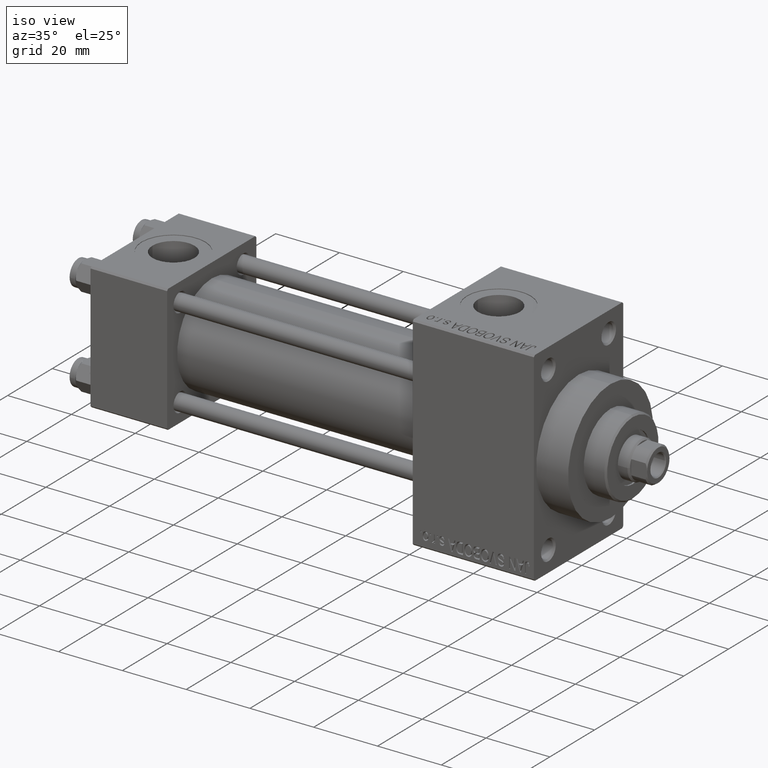
[diagram: clean part render]
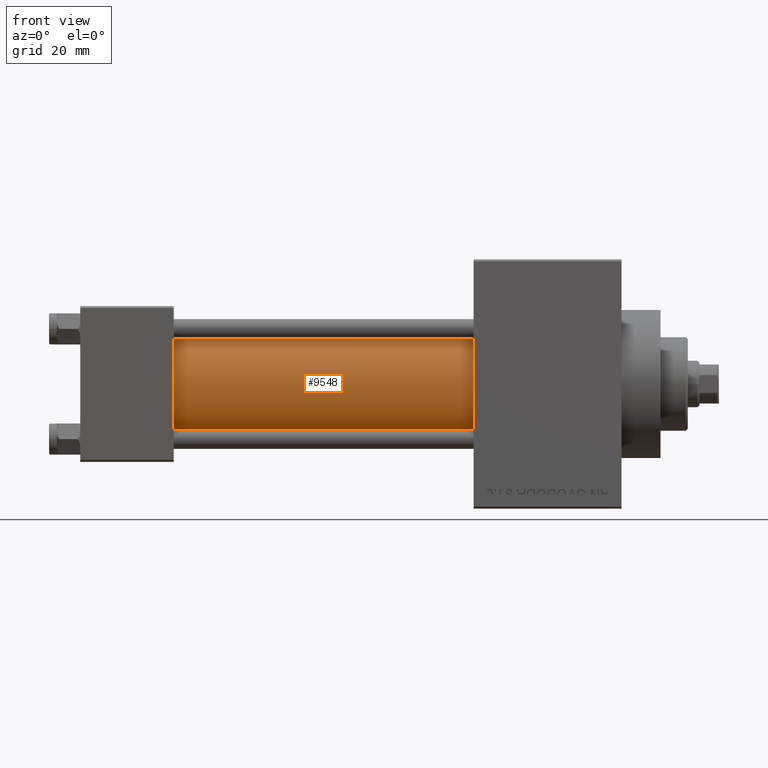
[diagram: tour spotlight — one face highlighted and labeled with its STEP entity id]
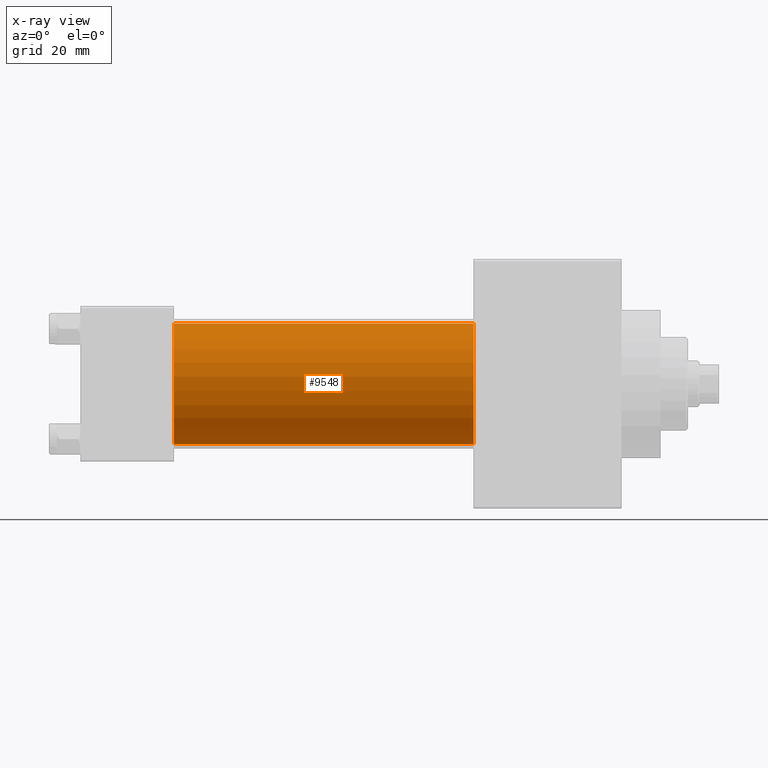
[diagram: x-ray of the same camera — body ghosted, this tour face saturated]
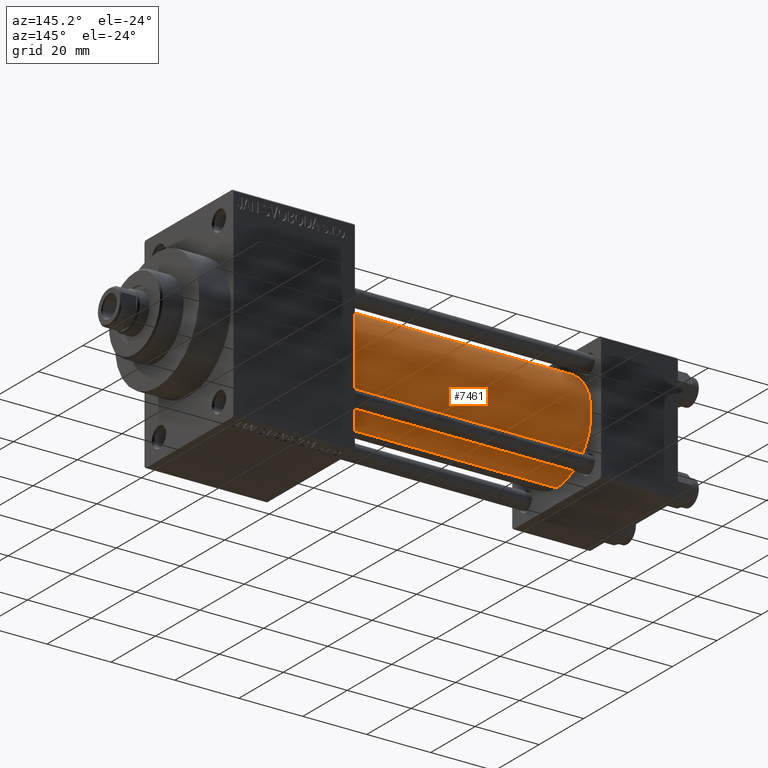
[diagram: tour spotlight — one face highlighted and labeled with its STEP entity id]
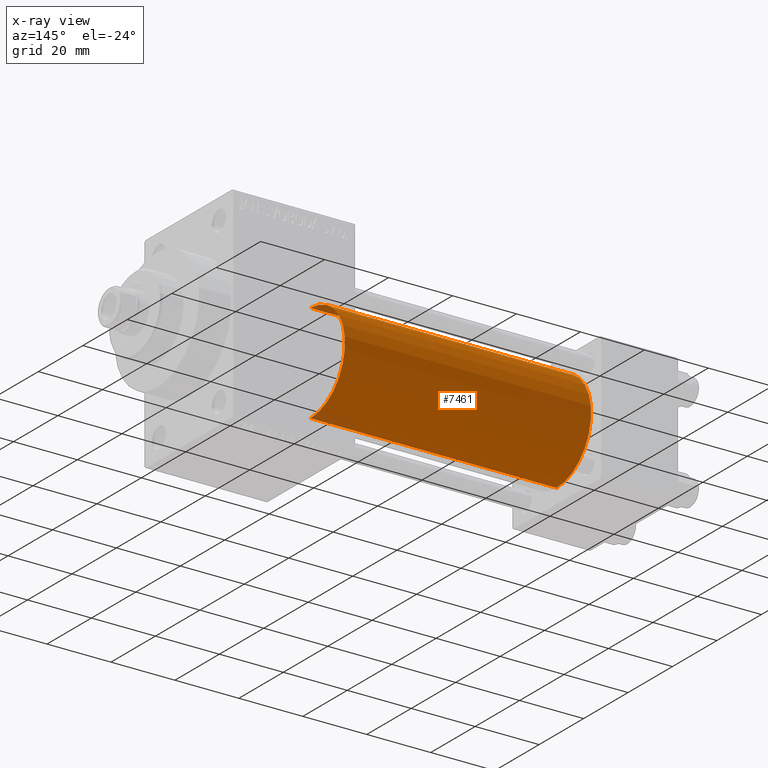
[diagram: x-ray of the same camera — body ghosted, this tour face saturated]
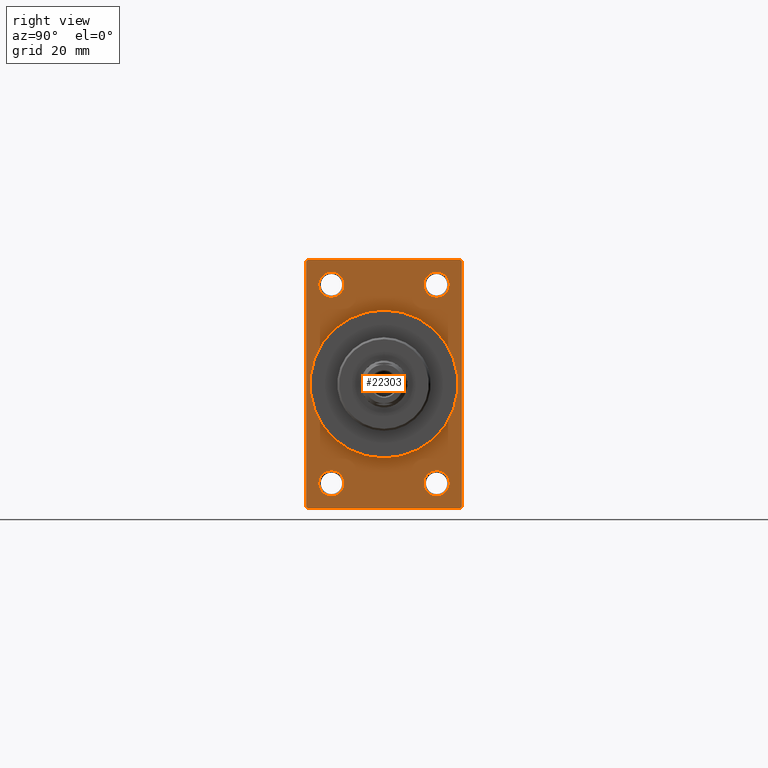
[diagram: tour spotlight — one face highlighted and labeled with its STEP entity id]
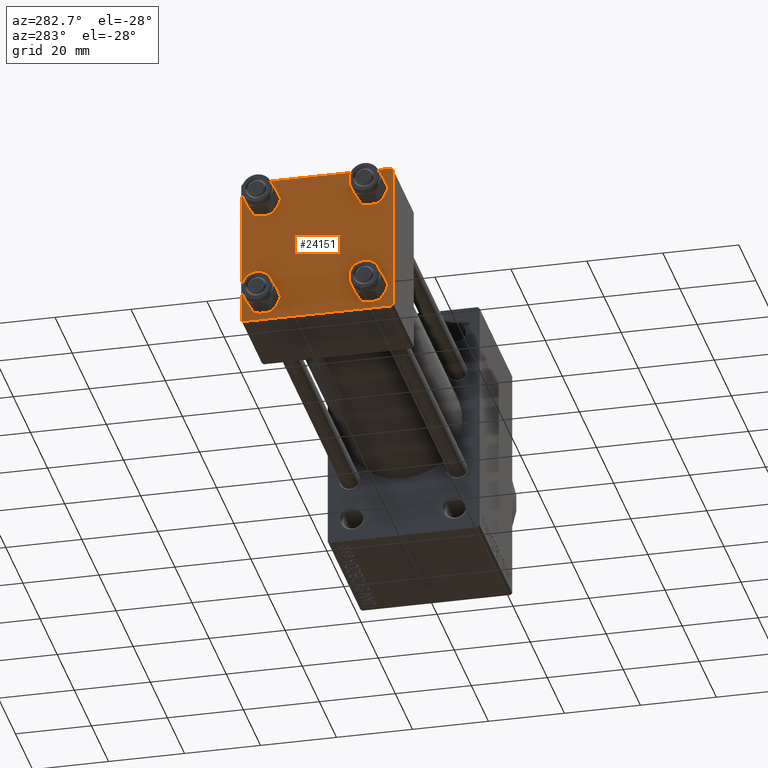
[diagram: tour spotlight — one face highlighted and labeled with its STEP entity id]
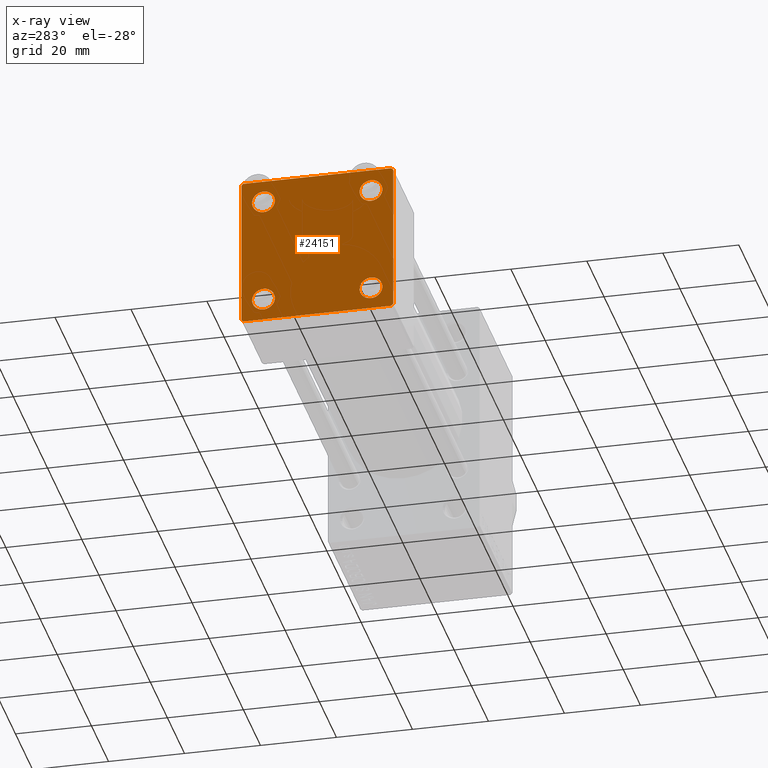
[diagram: x-ray of the same camera — body ghosted, this tour face saturated]
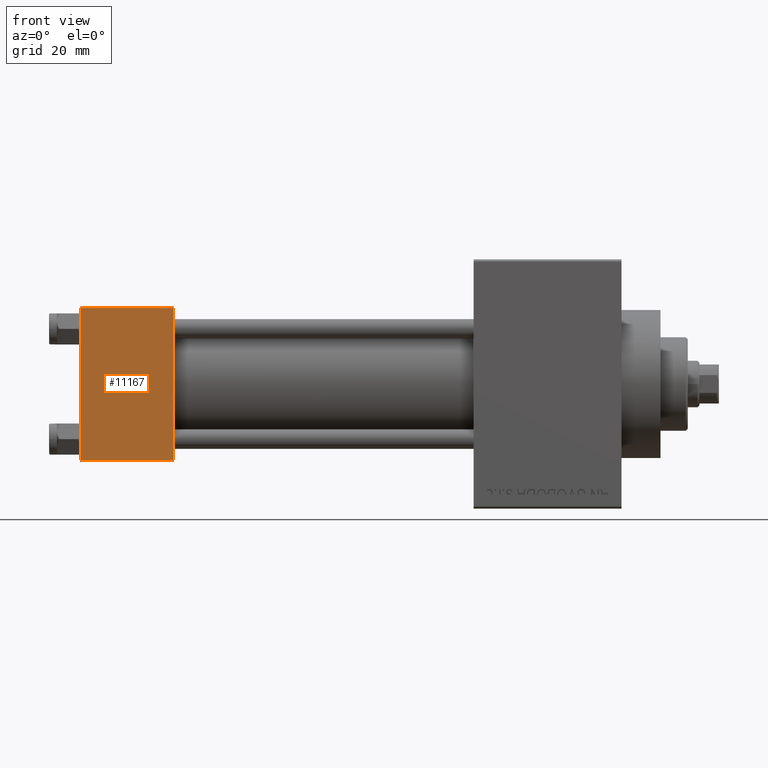
[diagram: tour spotlight — one face highlighted and labeled with its STEP entity id]
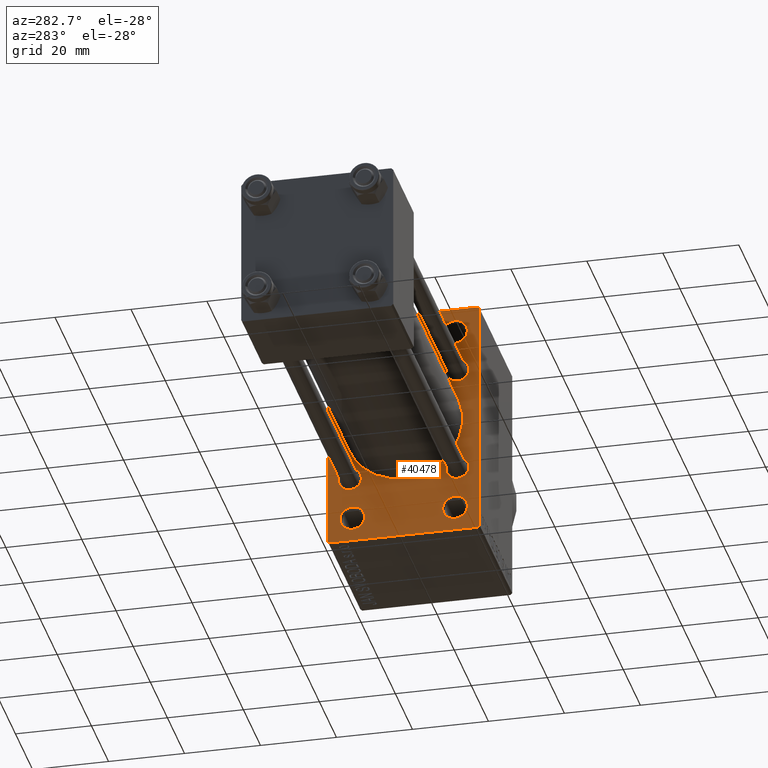
[diagram: tour spotlight — one face highlighted and labeled with its STEP entity id]
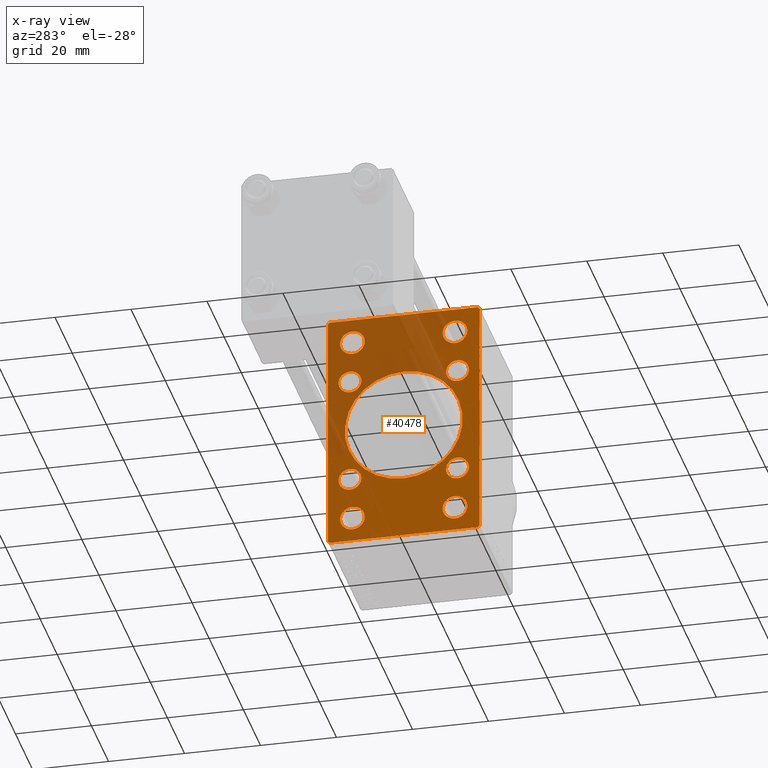
[diagram: x-ray of the same camera — body ghosted, this tour face saturated]
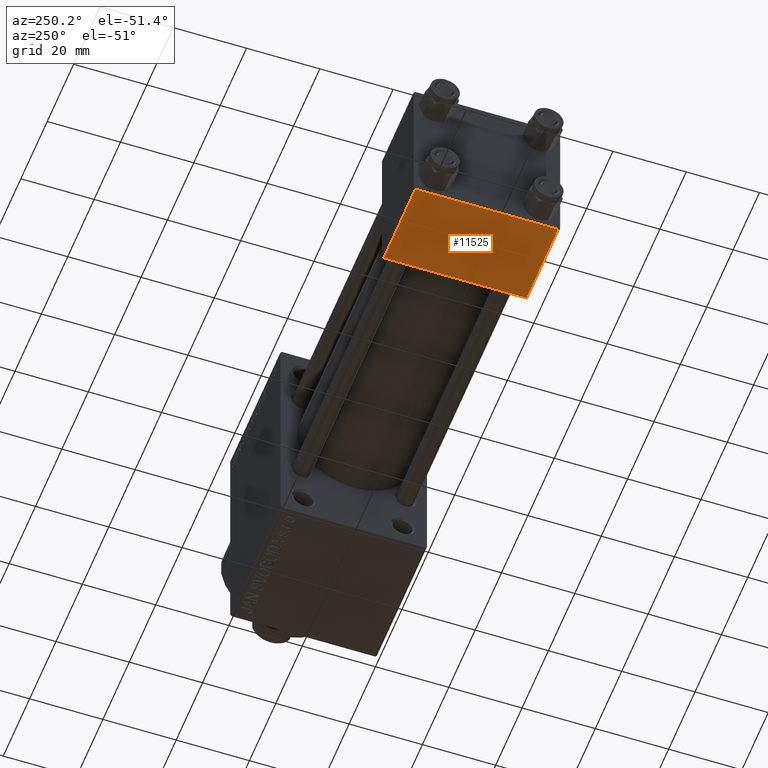
[diagram: tour spotlight — one face highlighted and labeled with its STEP entity id]
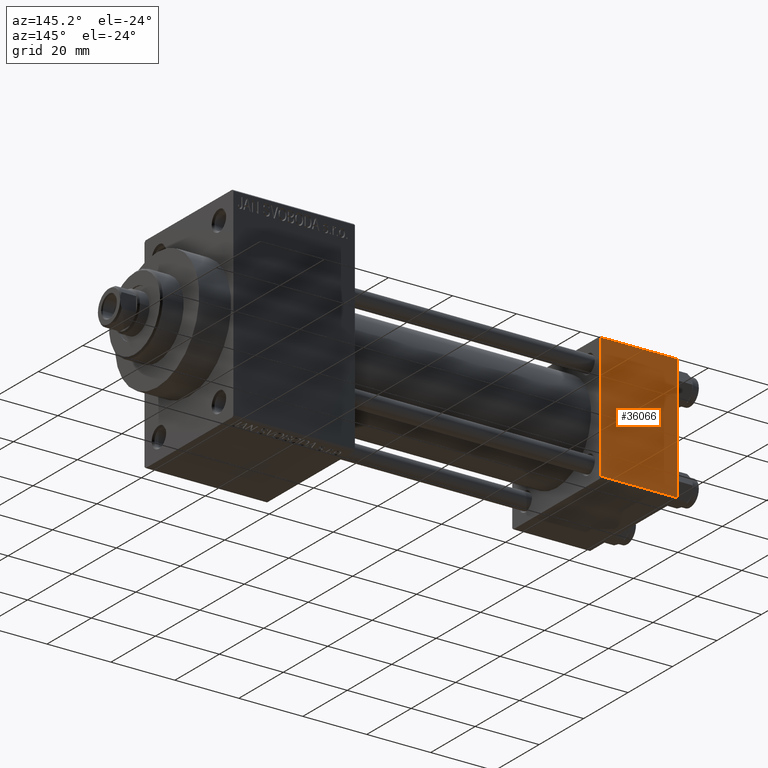
[diagram: tour spotlight — one face highlighted and labeled with its STEP entity id]
A machine part: a face-by-face anatomy tour. The part has 1102 B-rep faces; the first image is the clean iso view, then the 8 largest visible faces are spotlighted one at a time (largest first), each with its STEP entity span.

Face 1 — front view, entity #9548. An x-ray twin of the same camera follows (body ghosted, this face saturated) — the face is partly hidden behind the body. In plain terms, the highlighted cylindrical surface (partial cylindrical patch) has radius 15.5 mm, axis along (-1, -0, -0).
Definition (entity closure, byte-faithful):
#32 = DIRECTION ( 'NONE',  ( 0.000000000000000000, 0.000000000000000000, 1.000000000000000000 ) ) ;
#691 = CARTESIAN_POINT ( 'NONE',  ( 101.0000000000000000, -2.602085213965210642E-15, 15.50000000000000000 ) ) ;
#1057 = ORIENTED_EDGE ( 'NONE', *, *, #2893, .F. ) ;
#1878 = VERTEX_POINT ( 'NONE', #19076 ) ;
#2441 = CARTESIAN_POINT ( 'NONE',  ( 23.99999999999999289, -2.602085213965210642E-15, 15.50000000000000000 ) ) ;
#2893 = EDGE_CURVE ( 'NONE', #1878, #21399, #36142, .T. ) ;
#3420 = CIRCLE ( 'NONE', #15601, 15.50000000000000000 ) ;
#4606 = VECTOR ( 'NONE', #12903, 1000.000000000000000 ) ;
#6673 = CIRCLE ( 'NONE', #13510, 15.50000000000000000 ) ;
#9509 = CYLINDRICAL_SURFACE ( 'NONE', #27727, 15.50000000000000000 ) ;
#9548 = ADVANCED_FACE ( 'NONE', ( #19761 ), #9509, .T. ) ;
#9969 = DIRECTION ( 'NONE',  ( -1.000000000000000000, -0.000000000000000000, -0.000000000000000000 ) ) ;
#10310 = EDGE_CURVE ( 'NONE', #42190, #1878, #3420, .T. ) ;
#10511 = CARTESIAN_POINT ( 'NONE',  ( 23.99999999999999289, -2.602085213965210642E-15, 0.000000000000000000 ) ) ;
#11728 = EDGE_LOOP ( 'NONE', ( #1057, #15903, #41167, #16140 ) ) ;
#12618 = DIRECTION ( 'NONE',  ( 0.000000000000000000, 0.000000000000000000, -1.000000000000000000 ) ) ;
#12903 = DIRECTION ( 'NONE',  ( -1.000000000000000000, -0.000000000000000000, -0.000000000000000000 ) ) ;
#13510 = AXIS2_PLACEMENT_3D ( 'NONE', #10511, #32666, #32 ) ;
#14478 = VERTEX_POINT ( 'NONE', #2441 ) ;
#14714 = CARTESIAN_POINT ( 'NONE',  ( 101.0000000000000000, -7.038826752868131828E-16, -15.50000000000000000 ) ) ;
#15601 = AXIS2_PLACEMENT_3D ( 'NONE', #30724, #45253, #12618 ) ;
#15903 = ORIENTED_EDGE ( 'NONE', *, *, #10310, .F. ) ;
#16140 = ORIENTED_EDGE ( 'NONE', *, *, #20569, .T. ) ;
#19076 = CARTESIAN_POINT ( 'NONE',  ( 101.0000000000000000, -7.038826752868131828E-16, -15.50000000000000000 ) ) ;
#19761 = FACE_OUTER_BOUND ( 'NONE', #11728, .T. ) ;
#20569 = EDGE_CURVE ( 'NONE', #14478, #21399, #6673, .T. ) ;
#21399 = VERTEX_POINT ( 'NONE', #21963 ) ;
#21963 = CARTESIAN_POINT ( 'NONE',  ( 23.99999999999999289, -7.038826752868131828E-16, -15.50000000000000000 ) ) ;
#27080 = EDGE_CURVE ( 'NONE', #42190, #14478, #45538, .T. ) ;
#27727 = AXIS2_PLACEMENT_3D ( 'NONE', #45490, #9969, #42382 ) ;
#29237 = DIRECTION ( 'NONE',  ( -1.000000000000000000, -0.000000000000000000, -0.000000000000000000 ) ) ;
#30724 = CARTESIAN_POINT ( 'NONE',  ( 101.0000000000000000, -2.602085213965210642E-15, 0.000000000000000000 ) ) ;
#32666 = DIRECTION ( 'NONE',  ( 1.000000000000000000, 0.000000000000000000, 0.000000000000000000 ) ) ;
#35991 = VECTOR ( 'NONE', #29237, 1000.000000000000000 ) ;
#36142 = LINE ( 'NONE', #14714, #35991 ) ;
#41167 = ORIENTED_EDGE ( 'NONE', *, *, #27080, .T. ) ;
#41953 = CARTESIAN_POINT ( 'NONE',  ( 101.0000000000000000, -2.602085213965210642E-15, 15.50000000000000000 ) ) ;
#42190 = VERTEX_POINT ( 'NONE', #691 ) ;
#42382 = DIRECTION ( 'NONE',  ( 0.000000000000000000, 0.000000000000000000, 1.000000000000000000 ) ) ;
#45253 = DIRECTION ( 'NONE',  ( 1.000000000000000000, 0.000000000000000000, 0.000000000000000000 ) ) ;
#45490 = CARTESIAN_POINT ( 'NONE',  ( 101.0000000000000000, -2.602085213965210642E-15, 0.000000000000000000 ) ) ;
#45538 = LINE ( 'NONE', #41953, #4606 ) ;

Face 2 — auxiliary view, entity #7461. An x-ray twin of the same camera follows (body ghosted, this face saturated) — the face is partly hidden behind the body. In plain terms, the highlighted cylindrical surface (partial cylindrical patch) has radius 15.5 mm, axis along (-1, -0, -0).
Definition (entity closure, byte-faithful):
#691 = CARTESIAN_POINT ( 'NONE',  ( 101.0000000000000000, -2.602085213965210642E-15, 15.50000000000000000 ) ) ;
#1068 = CIRCLE ( 'NONE', #35306, 15.50000000000000000 ) ;
#1878 = VERTEX_POINT ( 'NONE', #19076 ) ;
#2127 = EDGE_LOOP ( 'NONE', ( #15408, #27421, #40352, #24427 ) ) ;
#2441 = CARTESIAN_POINT ( 'NONE',  ( 23.99999999999999289, -2.602085213965210642E-15, 15.50000000000000000 ) ) ;
#2893 = EDGE_CURVE ( 'NONE', #1878, #21399, #36142, .T. ) ;
#4606 = VECTOR ( 'NONE', #12903, 1000.000000000000000 ) ;
#5805 = CARTESIAN_POINT ( 'NONE',  ( 101.0000000000000000, -2.602085213965210642E-15, 0.000000000000000000 ) ) ;
#7461 = ADVANCED_FACE ( 'NONE', ( #16408 ), #34035, .T. ) ;
#8010 = EDGE_CURVE ( 'NONE', #1878, #42190, #1068, .T. ) ;
#8818 = DIRECTION ( 'NONE',  ( 1.000000000000000000, 0.000000000000000000, 0.000000000000000000 ) ) ;
#12903 = DIRECTION ( 'NONE',  ( -1.000000000000000000, -0.000000000000000000, -0.000000000000000000 ) ) ;
#13275 = EDGE_CURVE ( 'NONE', #21399, #14478, #23322, .T. ) ;
#14478 = VERTEX_POINT ( 'NONE', #2441 ) ;
#14714 = CARTESIAN_POINT ( 'NONE',  ( 101.0000000000000000, -7.038826752868131828E-16, -15.50000000000000000 ) ) ;
#15408 = ORIENTED_EDGE ( 'NONE', *, *, #8010, .F. ) ;
#16408 = FACE_OUTER_BOUND ( 'NONE', #2127, .T. ) ;
#19076 = CARTESIAN_POINT ( 'NONE',  ( 101.0000000000000000, -7.038826752868131828E-16, -15.50000000000000000 ) ) ;
#19966 = DIRECTION ( 'NONE',  ( -1.000000000000000000, -0.000000000000000000, -0.000000000000000000 ) ) ;
#21033 = DIRECTION ( 'NONE',  ( 1.000000000000000000, 0.000000000000000000, 0.000000000000000000 ) ) ;
#21399 = VERTEX_POINT ( 'NONE', #21963 ) ;
#21963 = CARTESIAN_POINT ( 'NONE',  ( 23.99999999999999289, -7.038826752868131828E-16, -15.50000000000000000 ) ) ;
#23322 = CIRCLE ( 'NONE', #35474, 15.50000000000000000 ) ;
#23325 = CARTESIAN_POINT ( 'NONE',  ( 101.0000000000000000, -2.602085213965210642E-15, 0.000000000000000000 ) ) ;
#23371 = DIRECTION ( 'NONE',  ( 0.000000000000000000, 0.000000000000000000, 1.000000000000000000 ) ) ;
#24427 = ORIENTED_EDGE ( 'NONE', *, *, #27080, .F. ) ;
#27080 = EDGE_CURVE ( 'NONE', #42190, #14478, #45538, .T. ) ;
#27421 = ORIENTED_EDGE ( 'NONE', *, *, #2893, .T. ) ;
#28409 = DIRECTION ( 'NONE',  ( 0.000000000000000000, 0.000000000000000000, -1.000000000000000000 ) ) ;
#29237 = DIRECTION ( 'NONE',  ( -1.000000000000000000, -0.000000000000000000, -0.000000000000000000 ) ) ;
#34035 = CYLINDRICAL_SURFACE ( 'NONE', #35277, 15.50000000000000000 ) ;
#34499 = DIRECTION ( 'NONE',  ( 0.000000000000000000, 0.000000000000000000, 1.000000000000000000 ) ) ;
#35277 = AXIS2_PLACEMENT_3D ( 'NONE', #23325, #19966, #34499 ) ;
#35306 = AXIS2_PLACEMENT_3D ( 'NONE', #5805, #21033, #28409 ) ;
#35474 = AXIS2_PLACEMENT_3D ( 'NONE', #45018, #8818, #23371 ) ;
#35991 = VECTOR ( 'NONE', #29237, 1000.000000000000000 ) ;
#36142 = LINE ( 'NONE', #14714, #35991 ) ;
#40352 = ORIENTED_EDGE ( 'NONE', *, *, #13275, .T. ) ;
#41953 = CARTESIAN_POINT ( 'NONE',  ( 101.0000000000000000, -2.602085213965210642E-15, 15.50000000000000000 ) ) ;
#42190 = VERTEX_POINT ( 'NONE', #691 ) ;
#45018 = CARTESIAN_POINT ( 'NONE',  ( 23.99999999999999289, -2.602085213965210642E-15, 0.000000000000000000 ) ) ;
#45538 = LINE ( 'NONE', #41953, #4606 ) ;

Face 3 — right view, entity #22303. In plain terms, the highlighted planar face has unit normal (-1, 0, 0).
Definition (entity closure, byte-faithful):
#55 = DIRECTION ( 'NONE',  ( -0.000000000000000000, 0.000000000000000000, 1.000000000000000000 ) ) ;
#490 = DIRECTION ( 'NONE',  ( 0.000000000000000000, 0.000000000000000000, 1.000000000000000000 ) ) ;
#519 = FACE_OUTER_BOUND ( 'NONE', #45639, .T. ) ;
#1034 = ORIENTED_EDGE ( 'NONE', *, *, #9266, .T. ) ;
#1074 = CARTESIAN_POINT ( 'NONE',  ( 139.0000000000000000, 20.00000000000000000, 32.00000000000000000 ) ) ;
#1086 = DIRECTION ( 'NONE',  ( 0.000000000000000000, 0.000000000000000000, 1.000000000000000000 ) ) ;
#1131 = AXIS2_PLACEMENT_3D ( 'NONE', #9751, #5945, #20469 ) ;
#1140 = CARTESIAN_POINT ( 'NONE',  ( 139.0000000000000000, 20.00000000000000000, -31.50000000000000000 ) ) ;
#1288 = EDGE_CURVE ( 'NONE', #42419, #30003, #33684, .T. ) ;
#1604 = AXIS2_PLACEMENT_3D ( 'NONE', #39792, #10500, #490 ) ;
#1787 = LINE ( 'NONE', #1074, #30745 ) ;
#1953 = AXIS2_PLACEMENT_3D ( 'NONE', #28671, #3422, #7227 ) ;
#2012 = VECTOR ( 'NONE', #26547, 1000.000000000000000 ) ;
#2277 = DIRECTION ( 'NONE',  ( -0.000000000000000000, -0.7071067811865474617, -0.7071067811865474617 ) ) ;
#3095 = EDGE_CURVE ( 'NONE', #10316, #45363, #17056, .T. ) ;
#3157 = EDGE_CURVE ( 'NONE', #23104, #25949, #28000, .T. ) ;
#3351 = ORIENTED_EDGE ( 'NONE', *, *, #44023, .T. ) ;
#3384 = VERTEX_POINT ( 'NONE', #37648 ) ;
#3394 = FACE_BOUND ( 'NONE', #22638, .T. ) ;
#3422 = DIRECTION ( 'NONE',  ( 1.000000000000000000, 0.000000000000000000, 0.000000000000000000 ) ) ;
#3461 = ORIENTED_EDGE ( 'NONE', *, *, #3157, .F. ) ;
#3805 = EDGE_CURVE ( 'NONE', #3384, #13076, #42009, .T. ) ;
#3867 = FACE_BOUND ( 'NONE', #42828, .T. ) ;
#4424 = ORIENTED_EDGE ( 'NONE', *, *, #3095, .T. ) ;
#4488 = EDGE_CURVE ( 'NONE', #8215, #23038, #21518, .T. ) ;
#4729 = CARTESIAN_POINT ( 'NONE',  ( 139.0000000000000000, 19.50000000000000000, 32.00000000000000000 ) ) ;
#4968 = LINE ( 'NONE', #23313, #20909 ) ;
#5065 = ORIENTED_EDGE ( 'NONE', *, *, #3805, .F. ) ;
#5945 = DIRECTION ( 'NONE',  ( -1.000000000000000000, -0.000000000000000000, -0.000000000000000000 ) ) ;
#6223 = DIRECTION ( 'NONE',  ( 0.000000000000000000, 0.000000000000000000, 1.000000000000000000 ) ) ;
#6593 = DIRECTION ( 'NONE',  ( 0.000000000000000000, 0.000000000000000000, 1.000000000000000000 ) ) ;
#6823 = CARTESIAN_POINT ( 'NONE',  ( 139.0000000000000000, 13.49999999999999822, 25.50000000000000355 ) ) ;
#7145 = DIRECTION ( 'NONE',  ( -1.000000000000000000, -0.000000000000000000, -0.000000000000000000 ) ) ;
#7227 = DIRECTION ( 'NONE',  ( 0.000000000000000000, 0.000000000000000000, -1.000000000000000000 ) ) ;
#7523 = ORIENTED_EDGE ( 'NONE', *, *, #10350, .T. ) ;
#7931 = VERTEX_POINT ( 'NONE', #45111 ) ;
#8215 = VERTEX_POINT ( 'NONE', #40544 ) ;
#8548 = VECTOR ( 'NONE', #42526, 1000.000000000000000 ) ;
#8682 = ORIENTED_EDGE ( 'NONE', *, *, #28422, .T. ) ;
#8768 = EDGE_LOOP ( 'NONE', ( #21398, #36969 ) ) ;
#9266 = EDGE_CURVE ( 'NONE', #23038, #8215, #11735, .T. ) ;
#9654 = CARTESIAN_POINT ( 'NONE',  ( 139.0000000000000000, 0.000000000000000000, 0.000000000000000000 ) ) ;
#9751 = CARTESIAN_POINT ( 'NONE',  ( 139.0000000000000000, -13.50000000000000178, 25.50000000000000355 ) ) ;
#9890 = CARTESIAN_POINT ( 'NONE',  ( 139.0000000000000000, 20.00000000000000000, 32.00000000000000000 ) ) ;
#9968 = CARTESIAN_POINT ( 'NONE',  ( 139.0000000000000000, -13.50000000000000533, -28.74999999999998224 ) ) ;
#10316 = VERTEX_POINT ( 'NONE', #44308 ) ;
#10350 = EDGE_CURVE ( 'NONE', #22859, #7931, #24732, .T. ) ;
#10416 = CARTESIAN_POINT ( 'NONE',  ( 139.0000000000000000, -13.50000000000000178, 22.24999999999997158 ) ) ;
#10500 = DIRECTION ( 'NONE',  ( -1.000000000000000000, -0.000000000000000000, -0.000000000000000000 ) ) ;
#10532 = CARTESIAN_POINT ( 'NONE',  ( 139.0000000000000000, 0.000000000000000000, 0.000000000000000000 ) ) ;
#10724 = ORIENTED_EDGE ( 'NONE', *, *, #25797, .T. ) ;
#11010 = VERTEX_POINT ( 'NONE', #41338 ) ;
#11169 = DIRECTION ( 'NONE',  ( 0.000000000000000000, -1.000000000000000000, 0.000000000000000000 ) ) ;
#11464 = VERTEX_POINT ( 'NONE', #4729 ) ;
#11567 = VECTOR ( 'NONE', #2277, 1000.000000000000114 ) ;
#11614 = DIRECTION ( 'NONE',  ( -1.000000000000000000, -0.000000000000000000, -0.000000000000000000 ) ) ;
#11735 = CIRCLE ( 'NONE', #29261, 3.249999999999988898 ) ;
#11779 = VERTEX_POINT ( 'NONE', #15397 ) ;
#11844 = EDGE_CURVE ( 'NONE', #13076, #3384, #23253, .T. ) ;
#12479 = ORIENTED_EDGE ( 'NONE', *, *, #1288, .T. ) ;
#12541 = ORIENTED_EDGE ( 'NONE', *, *, #11844, .F. ) ;
#12968 = ORIENTED_EDGE ( 'NONE', *, *, #40798, .T. ) ;
#13076 = VERTEX_POINT ( 'NONE', #17033 ) ;
#13152 = AXIS2_PLACEMENT_3D ( 'NONE', #6823, #14220, #6593 ) ;
#13304 = CARTESIAN_POINT ( 'NONE',  ( 139.0000000000000000, 13.49999999999999822, -25.50000000000000000 ) ) ;
#13700 = EDGE_CURVE ( 'NONE', #11779, #25949, #16155, .T. ) ;
#14033 = CARTESIAN_POINT ( 'NONE',  ( 139.0000000000000000, 20.00000000000000000, -32.00000000000000000 ) ) ;
#14074 = EDGE_CURVE ( 'NONE', #30751, #30881, #29402, .T. ) ;
#14220 = DIRECTION ( 'NONE',  ( -1.000000000000000000, -0.000000000000000000, -0.000000000000000000 ) ) ;
#14351 = FACE_BOUND ( 'NONE', #8768, .T. ) ;
#15065 = PLANE ( 'NONE',  #26534 ) ;
#15397 = CARTESIAN_POINT ( 'NONE',  ( 139.0000000000000000, 19.50000000000000000, -32.00000000000000000 ) ) ;
#15437 = CARTESIAN_POINT ( 'NONE',  ( 139.0000000000000000, 13.49999999999999822, 25.50000000000000355 ) ) ;
#15684 = DIRECTION ( 'NONE',  ( -0.000000000000000000, 0.7071067811865474617, 0.7071067811865474617 ) ) ;
#16155 = LINE ( 'NONE', #1140, #46114 ) ;
#16349 = DIRECTION ( 'NONE',  ( 1.000000000000000000, 0.000000000000000000, 0.000000000000000000 ) ) ;
#16601 = ORIENTED_EDGE ( 'NONE', *, *, #33752, .F. ) ;
#16639 = ORIENTED_EDGE ( 'NONE', *, *, #4488, .T. ) ;
#17033 = CARTESIAN_POINT ( 'NONE',  ( 139.0000000000000000, 2.326828918379970970E-15, -19.00000000000000000 ) ) ;
#17056 = LINE ( 'NONE', #27296, #11567 ) ;
#17701 = AXIS2_PLACEMENT_3D ( 'NONE', #39771, #7145, #21687 ) ;
#18544 = CARTESIAN_POINT ( 'NONE',  ( 139.0000000000000000, 20.00000000000000000, 31.50000000000000000 ) ) ;
#19158 = CARTESIAN_POINT ( 'NONE',  ( 139.0000000000000000, -20.00000000000000000, 31.99999999999999289 ) ) ;
#19204 = ORIENTED_EDGE ( 'NONE', *, *, #13700, .T. ) ;
#20469 = DIRECTION ( 'NONE',  ( 0.000000000000000000, 0.000000000000000000, 1.000000000000000000 ) ) ;
#20909 = VECTOR ( 'NONE', #44491, 1000.000000000000000 ) ;
#21398 = ORIENTED_EDGE ( 'NONE', *, *, #14074, .T. ) ;
#21518 = CIRCLE ( 'NONE', #17701, 3.249999999999988898 ) ;
#21687 = DIRECTION ( 'NONE',  ( 0.000000000000000000, 0.000000000000000000, 1.000000000000000000 ) ) ;
#22303 = ADVANCED_FACE ( 'NONE', ( #3394, #3867, #14351, #24826, #32919, #519 ), #15065, .F. ) ;
#22546 = CARTESIAN_POINT ( 'NONE',  ( 139.0000000000000000, 13.49999999999999822, -25.50000000000000000 ) ) ;
#22638 = EDGE_LOOP ( 'NONE', ( #7523, #34403 ) ) ;
#22827 = VECTOR ( 'NONE', #31522, 1000.000000000000114 ) ;
#22859 = VERTEX_POINT ( 'NONE', #10416 ) ;
#23038 = VERTEX_POINT ( 'NONE', #9968 ) ;
#23104 = VERTEX_POINT ( 'NONE', #18544 ) ;
#23253 = CIRCLE ( 'NONE', #1953, 19.00000000000000000 ) ;
#23313 = CARTESIAN_POINT ( 'NONE',  ( 139.0000000000000000, -19.50000000000000000, -32.00000000000000000 ) ) ;
#24732 = CIRCLE ( 'NONE', #1131, 3.250000000000030642 ) ;
#24826 = FACE_BOUND ( 'NONE', #37589, .T. ) ;
#25331 = VERTEX_POINT ( 'NONE', #27984 ) ;
#25775 = DIRECTION ( 'NONE',  ( -1.000000000000000000, 0.000000000000000000, -0.000000000000000000 ) ) ;
#25797 = EDGE_CURVE ( 'NONE', #23104, #11464, #27245, .T. ) ;
#25949 = VERTEX_POINT ( 'NONE', #39367 ) ;
#26343 = DIRECTION ( 'NONE',  ( -1.000000000000000000, -0.000000000000000000, -0.000000000000000000 ) ) ;
#26534 = AXIS2_PLACEMENT_3D ( 'NONE', #10532, #25775, #55 ) ;
#26547 = DIRECTION ( 'NONE',  ( 0.000000000000000000, 0.000000000000000000, -1.000000000000000000 ) ) ;
#27245 = LINE ( 'NONE', #38426, #22827 ) ;
#27296 = CARTESIAN_POINT ( 'NONE',  ( 139.0000000000000000, -20.00000000000000000, 31.49999999999999289 ) ) ;
#27820 = DIRECTION ( 'NONE',  ( 0.000000000000000000, 0.000000000000000000, 1.000000000000000000 ) ) ;
#27984 = CARTESIAN_POINT ( 'NONE',  ( 139.0000000000000000, -20.00000000000000000, -31.50000000000000711 ) ) ;
#28000 = LINE ( 'NONE', #9890, #8548 ) ;
#28003 = EDGE_CURVE ( 'NONE', #7931, #22859, #41146, .T. ) ;
#28422 = EDGE_CURVE ( 'NONE', #30003, #42419, #44949, .T. ) ;
#28671 = CARTESIAN_POINT ( 'NONE',  ( 139.0000000000000000, 0.000000000000000000, 0.000000000000000000 ) ) ;
#29261 = AXIS2_PLACEMENT_3D ( 'NONE', #30068, #44590, #6223 ) ;
#29402 = CIRCLE ( 'NONE', #34730, 3.249999999999988898 ) ;
#29648 = CARTESIAN_POINT ( 'NONE',  ( 139.0000000000000000, 13.49999999999999822, 22.25000000000001776 ) ) ;
#29722 = DIRECTION ( 'NONE',  ( 0.000000000000000000, 0.000000000000000000, 1.000000000000000000 ) ) ;
#30003 = VERTEX_POINT ( 'NONE', #44116 ) ;
#30061 = CIRCLE ( 'NONE', #44500, 3.249999999999988898 ) ;
#30068 = CARTESIAN_POINT ( 'NONE',  ( 139.0000000000000000, -13.50000000000000533, -25.49999999999999645 ) ) ;
#30591 = AXIS2_PLACEMENT_3D ( 'NONE', #9654, #16349, #34438 ) ;
#30745 = VECTOR ( 'NONE', #37980, 1000.000000000000000 ) ;
#30751 = VERTEX_POINT ( 'NONE', #40383 ) ;
#30881 = VERTEX_POINT ( 'NONE', #36459 ) ;
#31396 = DIRECTION ( 'NONE',  ( -1.000000000000000000, -0.000000000000000000, -0.000000000000000000 ) ) ;
#31522 = DIRECTION ( 'NONE',  ( 0.000000000000000000, -0.7071067811865474617, 0.7071067811865474617 ) ) ;
#31888 = LINE ( 'NONE', #14033, #44984 ) ;
#32049 = ORIENTED_EDGE ( 'NONE', *, *, #39010, .T. ) ;
#32919 = FACE_BOUND ( 'NONE', #38318, .T. ) ;
#33684 = CIRCLE ( 'NONE', #13152, 3.249999999999988898 ) ;
#33696 = LINE ( 'NONE', #19158, #2012 ) ;
#33752 = EDGE_CURVE ( 'NONE', #11779, #11010, #31888, .T. ) ;
#34403 = ORIENTED_EDGE ( 'NONE', *, *, #28003, .T. ) ;
#34438 = DIRECTION ( 'NONE',  ( 0.000000000000000000, 0.000000000000000000, -1.000000000000000000 ) ) ;
#34730 = AXIS2_PLACEMENT_3D ( 'NONE', #22546, #26343, #1086 ) ;
#36459 = CARTESIAN_POINT ( 'NONE',  ( 139.0000000000000000, 13.49999999999999822, -22.25000000000001066 ) ) ;
#36969 = ORIENTED_EDGE ( 'NONE', *, *, #42371, .T. ) ;
#37589 = EDGE_LOOP ( 'NONE', ( #12479, #8682 ) ) ;
#37648 = CARTESIAN_POINT ( 'NONE',  ( 139.0000000000000000, 0.000000000000000000, 19.00000000000000000 ) ) ;
#37980 = DIRECTION ( 'NONE',  ( 0.000000000000000000, -1.000000000000000000, -1.734723475976807094E-16 ) ) ;
#38318 = EDGE_LOOP ( 'NONE', ( #5065, #12541 ) ) ;
#38426 = CARTESIAN_POINT ( 'NONE',  ( 139.0000000000000000, 19.50000000000000000, 32.00000000000000000 ) ) ;
#39010 = EDGE_CURVE ( 'NONE', #11464, #10316, #1787, .T. ) ;
#39367 = CARTESIAN_POINT ( 'NONE',  ( 139.0000000000000000, 20.00000000000000000, -31.50000000000000000 ) ) ;
#39771 = CARTESIAN_POINT ( 'NONE',  ( 139.0000000000000000, -13.50000000000000533, -25.49999999999999645 ) ) ;
#39792 = CARTESIAN_POINT ( 'NONE',  ( 139.0000000000000000, -13.50000000000000178, 25.50000000000000355 ) ) ;
#40383 = CARTESIAN_POINT ( 'NONE',  ( 139.0000000000000000, 13.49999999999999822, -28.74999999999998579 ) ) ;
#40544 = CARTESIAN_POINT ( 'NONE',  ( 139.0000000000000000, -13.50000000000000533, -22.25000000000000711 ) ) ;
#40798 = EDGE_CURVE ( 'NONE', #25331, #11010, #4968, .T. ) ;
#41038 = CARTESIAN_POINT ( 'NONE',  ( 139.0000000000000000, -20.00000000000000000, 31.49999999999999289 ) ) ;
#41146 = CIRCLE ( 'NONE', #1604, 3.250000000000030642 ) ;
#41338 = CARTESIAN_POINT ( 'NONE',  ( 139.0000000000000000, -19.50000000000000000, -32.00000000000000000 ) ) ;
#42009 = CIRCLE ( 'NONE', #30591, 19.00000000000000000 ) ;
#42371 = EDGE_CURVE ( 'NONE', #30881, #30751, #30061, .T. ) ;
#42419 = VERTEX_POINT ( 'NONE', #29648 ) ;
#42526 = DIRECTION ( 'NONE',  ( 0.000000000000000000, 0.000000000000000000, -1.000000000000000000 ) ) ;
#42671 = AXIS2_PLACEMENT_3D ( 'NONE', #15437, #11614, #29722 ) ;
#42828 = EDGE_LOOP ( 'NONE', ( #1034, #16639 ) ) ;
#44023 = EDGE_CURVE ( 'NONE', #45363, #25331, #33696, .T. ) ;
#44116 = CARTESIAN_POINT ( 'NONE',  ( 139.0000000000000000, 13.49999999999999822, 28.74999999999999289 ) ) ;
#44308 = CARTESIAN_POINT ( 'NONE',  ( 139.0000000000000000, -19.50000000000000000, 31.99999999999999289 ) ) ;
#44491 = DIRECTION ( 'NONE',  ( 0.000000000000000000, 0.7071067811865524577, -0.7071067811865426878 ) ) ;
#44500 = AXIS2_PLACEMENT_3D ( 'NONE', #13304, #31396, #27820 ) ;
#44590 = DIRECTION ( 'NONE',  ( -1.000000000000000000, -0.000000000000000000, -0.000000000000000000 ) ) ;
#44949 = CIRCLE ( 'NONE', #42671, 3.249999999999988898 ) ;
#44984 = VECTOR ( 'NONE', #11169, 1000.000000000000000 ) ;
#45111 = CARTESIAN_POINT ( 'NONE',  ( 139.0000000000000000, -13.50000000000000178, 28.75000000000003197 ) ) ;
#45363 = VERTEX_POINT ( 'NONE', #41038 ) ;
#45639 = EDGE_LOOP ( 'NONE', ( #3351, #12968, #16601, #19204, #3461, #10724, #32049, #4424 ) ) ;
#46114 = VECTOR ( 'NONE', #15684, 1000.000000000000114 ) ;

Face 4 — auxiliary view, entity #24151. An x-ray twin of the same camera follows (body ghosted, this face saturated) — the face is partly hidden behind the body. In plain terms, the highlighted planar face has unit normal (-1, 0, 0).
Definition (entity closure, byte-faithful):
#125 = DIRECTION ( 'NONE',  ( 0.000000000000000000, 0.000000000000000000, 1.000000000000000000 ) ) ;
#312 = ORIENTED_EDGE ( 'NONE', *, *, #16609, .T. ) ;
#598 = CARTESIAN_POINT ( 'NONE',  ( 0.000000000000000000, 14.14999999999999858, -14.15000000000000036 ) ) ;
#684 = AXIS2_PLACEMENT_3D ( 'NONE', #34707, #17311, #2306 ) ;
#765 = CARTESIAN_POINT ( 'NONE',  ( 0.000000000000000000, -14.14999999999999503, 14.15000000000000391 ) ) ;
#887 = CARTESIAN_POINT ( 'NONE',  ( 0.000000000000000000, -19.49999999999999289, 19.99999999999998934 ) ) ;
#1226 = CIRCLE ( 'NONE', #40800, 2.999999999999983569 ) ;
#2079 = FACE_BOUND ( 'NONE', #4565, .T. ) ;
#2306 = DIRECTION ( 'NONE',  ( -0.000000000000000000, 0.000000000000000000, 1.000000000000000000 ) ) ;
#2788 = CARTESIAN_POINT ( 'NONE',  ( 0.000000000000000000, 14.14999999999999858, 11.15000000000001990 ) ) ;
#3009 = DIRECTION ( 'NONE',  ( 0.000000000000000000, -0.7071067811865401342, 0.7071067811865549002 ) ) ;
#3299 = VECTOR ( 'NONE', #32215, 1000.000000000000000 ) ;
#3324 = ORIENTED_EDGE ( 'NONE', *, *, #30788, .T. ) ;
#3402 = ORIENTED_EDGE ( 'NONE', *, *, #34676, .F. ) ;
#3669 = EDGE_LOOP ( 'NONE', ( #27530, #3324 ) ) ;
#4240 = VECTOR ( 'NONE', #46202, 1000.000000000000000 ) ;
#4425 = DIRECTION ( 'NONE',  ( 1.000000000000000000, 0.000000000000000000, 0.000000000000000000 ) ) ;
#4565 = EDGE_LOOP ( 'NONE', ( #30575, #312 ) ) ;
#4767 = ORIENTED_EDGE ( 'NONE', *, *, #12981, .T. ) ;
#4918 = CARTESIAN_POINT ( 'NONE',  ( 0.000000000000000000, -14.14999999999999503, -14.15000000000000391 ) ) ;
#5648 = FACE_BOUND ( 'NONE', #5873, .T. ) ;
#5873 = EDGE_LOOP ( 'NONE', ( #18356, #8491 ) ) ;
#5991 = EDGE_CURVE ( 'NONE', #42108, #13897, #13188, .T. ) ;
#6674 = CARTESIAN_POINT ( 'NONE',  ( 0.000000000000000000, 14.14999999999999858, 17.14999999999998437 ) ) ;
#7262 = CARTESIAN_POINT ( 'NONE',  ( 0.000000000000000000, 14.14999999999999858, -11.15000000000001812 ) ) ;
#7373 = LINE ( 'NONE', #21186, #25730 ) ;
#7803 = CIRCLE ( 'NONE', #34421, 2.999999999999983569 ) ;
#8444 = DIRECTION ( 'NONE',  ( 0.000000000000000000, 0.000000000000000000, 1.000000000000000000 ) ) ;
#8491 = ORIENTED_EDGE ( 'NONE', *, *, #44019, .T. ) ;
#9134 = CARTESIAN_POINT ( 'NONE',  ( 0.000000000000000000, 19.50000000000000711, -20.00000000000000711 ) ) ;
#9521 = CARTESIAN_POINT ( 'NONE',  ( 0.000000000000000000, -14.14999999999999503, 11.15000000000002345 ) ) ;
#9588 = DIRECTION ( 'NONE',  ( 0.000000000000000000, 8.673617379884036705E-17, -1.000000000000000000 ) ) ;
#10171 = DIRECTION ( 'NONE',  ( 0.000000000000000000, -1.000000000000000000, 1.734723475976807094E-16 ) ) ;
#10295 = CARTESIAN_POINT ( 'NONE',  ( 0.000000000000000000, 20.00000000000000000, 20.00000000000000000 ) ) ;
#10555 = DIRECTION ( 'NONE',  ( 1.000000000000000000, 0.000000000000000000, 0.000000000000000000 ) ) ;
#11138 = AXIS2_PLACEMENT_3D ( 'NONE', #4918, #15404, #26816 ) ;
#11217 = EDGE_CURVE ( 'NONE', #29375, #38194, #23836, .T. ) ;
#11746 = DIRECTION ( 'NONE',  ( 1.000000000000000000, 0.000000000000000000, 0.000000000000000000 ) ) ;
#11892 = EDGE_LOOP ( 'NONE', ( #35154, #17807, #37903, #4767, #3402, #34170, #29611, #13780 ) ) ;
#12981 = EDGE_CURVE ( 'NONE', #33437, #29011, #35636, .T. ) ;
#13188 = CIRCLE ( 'NONE', #21546, 2.999999999999983569 ) ;
#13626 = DIRECTION ( 'NONE',  ( -0.000000000000000000, 0.7071067811865500152, 0.7071067811865451302 ) ) ;
#13780 = ORIENTED_EDGE ( 'NONE', *, *, #21613, .T. ) ;
#13897 = VERTEX_POINT ( 'NONE', #2788 ) ;
#13960 = EDGE_CURVE ( 'NONE', #37030, #29375, #46592, .T. ) ;
#14094 = CARTESIAN_POINT ( 'NONE',  ( 0.000000000000000000, -19.50000000000000711, -20.00000000000000000 ) ) ;
#14385 = EDGE_CURVE ( 'NONE', #16783, #26239, #46150, .T. ) ;
#14526 = DIRECTION ( 'NONE',  ( 1.000000000000000000, 0.000000000000000000, 0.000000000000000000 ) ) ;
#15134 = VERTEX_POINT ( 'NONE', #9521 ) ;
#15135 = VERTEX_POINT ( 'NONE', #17375 ) ;
#15404 = DIRECTION ( 'NONE',  ( 1.000000000000000000, 0.000000000000000000, 0.000000000000000000 ) ) ;
#16333 = CARTESIAN_POINT ( 'NONE',  ( 0.000000000000000000, -14.14999999999999503, 17.14999999999998792 ) ) ;
#16353 = EDGE_CURVE ( 'NONE', #38194, #33437, #45456, .T. ) ;
#16403 = CARTESIAN_POINT ( 'NONE',  ( 0.000000000000000000, 20.00000000000000000, -20.00000000000000711 ) ) ;
#16609 = EDGE_CURVE ( 'NONE', #35571, #44002, #29400, .T. ) ;
#16783 = VERTEX_POINT ( 'NONE', #7262 ) ;
#16972 = CARTESIAN_POINT ( 'NONE',  ( -0.000000000000000000, -19.74999999999992539, 19.75000000000006395 ) ) ;
#17311 = DIRECTION ( 'NONE',  ( -1.000000000000000000, 0.000000000000000000, -0.000000000000000000 ) ) ;
#17375 = CARTESIAN_POINT ( 'NONE',  ( 0.000000000000000000, -20.00000000000000355, 19.49999999999998224 ) ) ;
#17753 = VERTEX_POINT ( 'NONE', #31838 ) ;
#17807 = ORIENTED_EDGE ( 'NONE', *, *, #11217, .T. ) ;
#18258 = CARTESIAN_POINT ( 'NONE',  ( 0.000000000000000000, 20.00000000000000000, 20.00000000000000000 ) ) ;
#18356 = ORIENTED_EDGE ( 'NONE', *, *, #5991, .T. ) ;
#18702 = CARTESIAN_POINT ( 'NONE',  ( 0.000000000000000000, 14.14999999999999858, 14.15000000000000036 ) ) ;
#18824 = ORIENTED_EDGE ( 'NONE', *, *, #27765, .T. ) ;
#18905 = CARTESIAN_POINT ( 'NONE',  ( 0.000000000000000000, 14.14999999999999858, -14.15000000000000036 ) ) ;
#19642 = DIRECTION ( 'NONE',  ( 1.000000000000000000, 0.000000000000000000, 0.000000000000000000 ) ) ;
#20744 = CIRCLE ( 'NONE', #32926, 2.999999999999983569 ) ;
#20877 = PLANE ( 'NONE',  #684 ) ;
#21028 = LINE ( 'NONE', #10295, #3299 ) ;
#21186 = CARTESIAN_POINT ( 'NONE',  ( -0.000000000000000000, 19.75000000000013500, 19.74999999999986144 ) ) ;
#21422 = CARTESIAN_POINT ( 'NONE',  ( 0.000000000000000000, -14.14999999999999503, -14.15000000000000391 ) ) ;
#21546 = AXIS2_PLACEMENT_3D ( 'NONE', #18702, #40143, #125 ) ;
#21613 = EDGE_CURVE ( 'NONE', #17753, #37030, #7373, .T. ) ;
#21827 = AXIS2_PLACEMENT_3D ( 'NONE', #18905, #11746, #40347 ) ;
#23319 = VECTOR ( 'NONE', #10171, 1000.000000000000000 ) ;
#23836 = LINE ( 'NONE', #46423, #4240 ) ;
#24123 = LINE ( 'NONE', #16972, #28669 ) ;
#24151 = ADVANCED_FACE ( 'NONE', ( #35406, #2079, #38505, #5648, #31600 ), #20877, .T. ) ;
#25087 = DIRECTION ( 'NONE',  ( 0.000000000000000000, 0.000000000000000000, 1.000000000000000000 ) ) ;
#25419 = CARTESIAN_POINT ( 'NONE',  ( 0.000000000000000000, 20.00000000000000000, 19.49999999999999289 ) ) ;
#25730 = VECTOR ( 'NONE', #36424, 999.9999999999998863 ) ;
#25961 = ORIENTED_EDGE ( 'NONE', *, *, #35199, .T. ) ;
#26239 = VERTEX_POINT ( 'NONE', #29006 ) ;
#26745 = LINE ( 'NONE', #46026, #44264 ) ;
#26816 = DIRECTION ( 'NONE',  ( 0.000000000000000000, 0.000000000000000000, 1.000000000000000000 ) ) ;
#27530 = ORIENTED_EDGE ( 'NONE', *, *, #14385, .T. ) ;
#27765 = EDGE_CURVE ( 'NONE', #15134, #33332, #36594, .T. ) ;
#27915 = CIRCLE ( 'NONE', #35420, 3.000000000000004441 ) ;
#28669 = VECTOR ( 'NONE', #13626, 1000.000000000000114 ) ;
#29006 = CARTESIAN_POINT ( 'NONE',  ( 0.000000000000000000, 14.14999999999999858, -17.14999999999998437 ) ) ;
#29011 = VERTEX_POINT ( 'NONE', #35786 ) ;
#29044 = DIRECTION ( 'NONE',  ( 0.000000000000000000, 0.000000000000000000, 1.000000000000000000 ) ) ;
#29197 = DIRECTION ( 'NONE',  ( 0.000000000000000000, 0.000000000000000000, 1.000000000000000000 ) ) ;
#29210 = CARTESIAN_POINT ( 'NONE',  ( 0.000000000000000000, -19.75000000000020961, -19.74999999999979394 ) ) ;
#29375 = VERTEX_POINT ( 'NONE', #39306 ) ;
#29400 = CIRCLE ( 'NONE', #11138, 3.000000000000004441 ) ;
#29611 = ORIENTED_EDGE ( 'NONE', *, *, #37561, .F. ) ;
#29866 = CARTESIAN_POINT ( 'NONE',  ( 0.000000000000000000, -14.14999999999999503, 14.15000000000000391 ) ) ;
#29891 = CARTESIAN_POINT ( 'NONE',  ( 0.000000000000000000, -14.14999999999999503, -11.15000000000000036 ) ) ;
#30099 = DIRECTION ( 'NONE',  ( 1.000000000000000000, 0.000000000000000000, 0.000000000000000000 ) ) ;
#30123 = CARTESIAN_POINT ( 'NONE',  ( 0.000000000000000000, 14.14999999999999858, 14.15000000000000036 ) ) ;
#30575 = ORIENTED_EDGE ( 'NONE', *, *, #46643, .T. ) ;
#30788 = EDGE_CURVE ( 'NONE', #26239, #16783, #7803, .T. ) ;
#31295 = VERTEX_POINT ( 'NONE', #887 ) ;
#31600 = FACE_OUTER_BOUND ( 'NONE', #11892, .T. ) ;
#31838 = CARTESIAN_POINT ( 'NONE',  ( 0.000000000000000000, 19.50000000000000000, 20.00000000000000000 ) ) ;
#32215 = DIRECTION ( 'NONE',  ( 0.000000000000000000, -1.000000000000000000, -2.602085213965210149E-16 ) ) ;
#32926 = AXIS2_PLACEMENT_3D ( 'NONE', #29866, #30099, #33440 ) ;
#33172 = VECTOR ( 'NONE', #3009, 1000.000000000000000 ) ;
#33199 = VECTOR ( 'NONE', #46832, 1000.000000000000000 ) ;
#33332 = VERTEX_POINT ( 'NONE', #16333 ) ;
#33437 = VERTEX_POINT ( 'NONE', #14094 ) ;
#33440 = DIRECTION ( 'NONE',  ( 0.000000000000000000, 0.000000000000000000, 1.000000000000000000 ) ) ;
#34170 = ORIENTED_EDGE ( 'NONE', *, *, #45480, .T. ) ;
#34421 = AXIS2_PLACEMENT_3D ( 'NONE', #598, #4425, #29197 ) ;
#34563 = CARTESIAN_POINT ( 'NONE',  ( 0.000000000000000000, -14.14999999999999503, -17.15000000000000924 ) ) ;
#34676 = EDGE_CURVE ( 'NONE', #15135, #29011, #26745, .T. ) ;
#34707 = CARTESIAN_POINT ( 'NONE',  ( 0.000000000000000000, 0.000000000000000000, 0.000000000000000000 ) ) ;
#35154 = ORIENTED_EDGE ( 'NONE', *, *, #13960, .T. ) ;
#35199 = EDGE_CURVE ( 'NONE', #33332, #15134, #20744, .T. ) ;
#35406 = FACE_BOUND ( 'NONE', #40943, .T. ) ;
#35420 = AXIS2_PLACEMENT_3D ( 'NONE', #21422, #14526, #29044 ) ;
#35571 = VERTEX_POINT ( 'NONE', #34563 ) ;
#35636 = LINE ( 'NONE', #29210, #33172 ) ;
#35786 = CARTESIAN_POINT ( 'NONE',  ( 0.000000000000000000, -20.00000000000000000, -19.49999999999999645 ) ) ;
#36424 = DIRECTION ( 'NONE',  ( 0.000000000000000000, 0.7071067811865425767, -0.7071067811865525687 ) ) ;
#36594 = CIRCLE ( 'NONE', #37330, 2.999999999999983569 ) ;
#37030 = VERTEX_POINT ( 'NONE', #25419 ) ;
#37330 = AXIS2_PLACEMENT_3D ( 'NONE', #765, #10555, #25087 ) ;
#37561 = EDGE_CURVE ( 'NONE', #17753, #31295, #21028, .T. ) ;
#37903 = ORIENTED_EDGE ( 'NONE', *, *, #16353, .T. ) ;
#38194 = VERTEX_POINT ( 'NONE', #9134 ) ;
#38505 = FACE_BOUND ( 'NONE', #3669, .T. ) ;
#39306 = CARTESIAN_POINT ( 'NONE',  ( 0.000000000000000000, 20.00000000000000000, -19.50000000000002132 ) ) ;
#40143 = DIRECTION ( 'NONE',  ( 1.000000000000000000, 0.000000000000000000, 0.000000000000000000 ) ) ;
#40347 = DIRECTION ( 'NONE',  ( 0.000000000000000000, 0.000000000000000000, 1.000000000000000000 ) ) ;
#40800 = AXIS2_PLACEMENT_3D ( 'NONE', #30123, #19642, #8444 ) ;
#40943 = EDGE_LOOP ( 'NONE', ( #25961, #18824 ) ) ;
#42108 = VERTEX_POINT ( 'NONE', #6674 ) ;
#44002 = VERTEX_POINT ( 'NONE', #29891 ) ;
#44019 = EDGE_CURVE ( 'NONE', #13897, #42108, #1226, .T. ) ;
#44264 = VECTOR ( 'NONE', #9588, 1000.000000000000000 ) ;
#45456 = LINE ( 'NONE', #16403, #23319 ) ;
#45480 = EDGE_CURVE ( 'NONE', #15135, #31295, #24123, .T. ) ;
#46026 = CARTESIAN_POINT ( 'NONE',  ( 0.000000000000000000, -20.00000000000000355, 19.99999999999998934 ) ) ;
#46150 = CIRCLE ( 'NONE', #21827, 2.999999999999983569 ) ;
#46202 = DIRECTION ( 'NONE',  ( -0.000000000000000000, -0.7071067811865524577, -0.7071067811865426878 ) ) ;
#46423 = CARTESIAN_POINT ( 'NONE',  ( -0.000000000000000000, 19.74999999999986855, -19.75000000000014211 ) ) ;
#46592 = LINE ( 'NONE', #18258, #33199 ) ;
#46643 = EDGE_CURVE ( 'NONE', #44002, #35571, #27915, .T. ) ;
#46832 = DIRECTION ( 'NONE',  ( 0.000000000000000000, 0.000000000000000000, -1.000000000000000000 ) ) ;

Face 5 — front view, entity #11167. In plain terms, the highlighted planar face has unit normal (0, 1, 0).
Definition (entity closure, byte-faithful):
#2388 = VECTOR ( 'NONE', #40014, 1000.000000000000000 ) ;
#2424 = LINE ( 'NONE', #6000, #20002 ) ;
#5976 = ORIENTED_EDGE ( 'NONE', *, *, #29419, .T. ) ;
#6000 = CARTESIAN_POINT ( 'NONE',  ( 24.00000000000000000, -20.00000000000000355, 19.49999999999998224 ) ) ;
#6683 = ORIENTED_EDGE ( 'NONE', *, *, #34676, .T. ) ;
#7895 = PLANE ( 'NONE',  #20173 ) ;
#8365 = ORIENTED_EDGE ( 'NONE', *, *, #8695, .F. ) ;
#8695 = EDGE_CURVE ( 'NONE', #32694, #15139, #32522, .T. ) ;
#9429 = VECTOR ( 'NONE', #35611, 1000.000000000000000 ) ;
#9588 = DIRECTION ( 'NONE',  ( 0.000000000000000000, 8.673617379884036705E-17, -1.000000000000000000 ) ) ;
#11167 = ADVANCED_FACE ( 'NONE', ( #33369 ), #7895, .F. ) ;
#12150 = DIRECTION ( 'NONE',  ( 0.000000000000000000, -8.673617379884036705E-17, 1.000000000000000000 ) ) ;
#15135 = VERTEX_POINT ( 'NONE', #17375 ) ;
#15139 = VERTEX_POINT ( 'NONE', #24522 ) ;
#17177 = LINE ( 'NONE', #26191, #2388 ) ;
#17375 = CARTESIAN_POINT ( 'NONE',  ( 0.000000000000000000, -20.00000000000000355, 19.49999999999998224 ) ) ;
#18846 = CARTESIAN_POINT ( 'NONE',  ( 24.00000000000000000, -20.00000000000000355, 19.99999999999998934 ) ) ;
#20002 = VECTOR ( 'NONE', #45074, 1000.000000000000000 ) ;
#20173 = AXIS2_PLACEMENT_3D ( 'NONE', #18846, #22426, #12150 ) ;
#21090 = CARTESIAN_POINT ( 'NONE',  ( 24.00000000000000000, -20.00000000000000355, 19.99999999999998934 ) ) ;
#22426 = DIRECTION ( 'NONE',  ( -0.000000000000000000, 1.000000000000000000, 8.673617379884036705E-17 ) ) ;
#24522 = CARTESIAN_POINT ( 'NONE',  ( 24.00000000000000000, -20.00000000000000000, -19.49999999999999645 ) ) ;
#26191 = CARTESIAN_POINT ( 'NONE',  ( 24.00000000000000000, -20.00000000000000000, -19.49999999999999645 ) ) ;
#26745 = LINE ( 'NONE', #46026, #44264 ) ;
#28836 = ORIENTED_EDGE ( 'NONE', *, *, #32354, .T. ) ;
#29011 = VERTEX_POINT ( 'NONE', #35786 ) ;
#29419 = EDGE_CURVE ( 'NONE', #29011, #15139, #17177, .T. ) ;
#32272 = EDGE_LOOP ( 'NONE', ( #6683, #5976, #8365, #28836 ) ) ;
#32354 = EDGE_CURVE ( 'NONE', #32694, #15135, #2424, .T. ) ;
#32522 = LINE ( 'NONE', #21090, #9429 ) ;
#32694 = VERTEX_POINT ( 'NONE', #37628 ) ;
#33369 = FACE_OUTER_BOUND ( 'NONE', #32272, .T. ) ;
#34676 = EDGE_CURVE ( 'NONE', #15135, #29011, #26745, .T. ) ;
#35611 = DIRECTION ( 'NONE',  ( 0.000000000000000000, 8.673617379884036705E-17, -1.000000000000000000 ) ) ;
#35786 = CARTESIAN_POINT ( 'NONE',  ( 0.000000000000000000, -20.00000000000000000, -19.49999999999999645 ) ) ;
#37628 = CARTESIAN_POINT ( 'NONE',  ( 24.00000000000000000, -20.00000000000000355, 19.49999999999998224 ) ) ;
#40014 = DIRECTION ( 'NONE',  ( 1.000000000000000000, 0.000000000000000000, 0.000000000000000000 ) ) ;
#44264 = VECTOR ( 'NONE', #9588, 1000.000000000000000 ) ;
#45074 = DIRECTION ( 'NONE',  ( -1.000000000000000000, 0.000000000000000000, 0.000000000000000000 ) ) ;
#46026 = CARTESIAN_POINT ( 'NONE',  ( 0.000000000000000000, -20.00000000000000355, 19.99999999999998934 ) ) ;

Face 6 — auxiliary view, entity #40478. An x-ray twin of the same camera follows (body ghosted, this face saturated) — the face is partly hidden behind the body. In plain terms, the highlighted planar face has unit normal (-1, 0, 0).
Definition (entity closure, byte-faithful):
#115 = DIRECTION ( 'NONE',  ( 1.000000000000000000, 0.000000000000000000, 0.000000000000000000 ) ) ;
#200 = CARTESIAN_POINT ( 'NONE',  ( 101.0000000000000000, -14.15000000000000036, -11.14999999999999680 ) ) ;
#375 = CIRCLE ( 'NONE', #16373, 3.000000000000004441 ) ;
#691 = CARTESIAN_POINT ( 'NONE',  ( 101.0000000000000000, -2.602085213965210642E-15, 15.50000000000000000 ) ) ;
#814 = DIRECTION ( 'NONE',  ( 0.000000000000000000, -0.7071067811865524577, 0.7071067811865426878 ) ) ;
#1044 = VERTEX_POINT ( 'NONE', #7368 ) ;
#1068 = CIRCLE ( 'NONE', #35306, 15.50000000000000000 ) ;
#1159 = EDGE_LOOP ( 'NONE', ( #25800, #10263 ) ) ;
#1785 = VERTEX_POINT ( 'NONE', #8361 ) ;
#1878 = VERTEX_POINT ( 'NONE', #19076 ) ;
#2377 = FACE_BOUND ( 'NONE', #13315, .T. ) ;
#2429 = CARTESIAN_POINT ( 'NONE',  ( 101.0000000000000000, -13.50000000000000533, -25.49999999999999645 ) ) ;
#3233 = AXIS2_PLACEMENT_3D ( 'NONE', #38981, #21124, #43259 ) ;
#3420 = CIRCLE ( 'NONE', #15601, 15.50000000000000000 ) ;
#3467 = EDGE_LOOP ( 'NONE', ( #23523, #35104 ) ) ;
#3777 = DIRECTION ( 'NONE',  ( 1.000000000000000000, 0.000000000000000000, 0.000000000000000000 ) ) ;
#3821 = CARTESIAN_POINT ( 'NONE',  ( 101.0000000000000000, -19.50000000000000000, -32.00000000000000000 ) ) ;
#3920 = VERTEX_POINT ( 'NONE', #24648 ) ;
#3943 = VERTEX_POINT ( 'NONE', #17982 ) ;
#4026 = VECTOR ( 'NONE', #34484, 1000.000000000000114 ) ;
#4205 = AXIS2_PLACEMENT_3D ( 'NONE', #20235, #16909, #27856 ) ;
#5228 = CARTESIAN_POINT ( 'NONE',  ( 101.0000000000000000, 14.15000000000000036, 14.15000000000000036 ) ) ;
#5632 = CARTESIAN_POINT ( 'NONE',  ( 101.0000000000000000, -13.50000000000000178, 25.50000000000000355 ) ) ;
#5787 = ORIENTED_EDGE ( 'NONE', *, *, #35932, .T. ) ;
#5805 = CARTESIAN_POINT ( 'NONE',  ( 101.0000000000000000, -2.602085213965210642E-15, 0.000000000000000000 ) ) ;
#5955 = FACE_BOUND ( 'NONE', #3467, .T. ) ;
#5989 = ORIENTED_EDGE ( 'NONE', *, *, #8010, .T. ) ;
#6007 = DIRECTION ( 'NONE',  ( 1.000000000000000000, 0.000000000000000000, 0.000000000000000000 ) ) ;
#6117 = DIRECTION ( 'NONE',  ( 0.000000000000000000, -1.000000000000000000, -1.734723475976807094E-16 ) ) ;
#6152 = ORIENTED_EDGE ( 'NONE', *, *, #46125, .F. ) ;
#6220 = CIRCLE ( 'NONE', #11526, 3.000000000000004441 ) ;
#6235 = DIRECTION ( 'NONE',  ( 1.000000000000000000, 0.000000000000000000, 0.000000000000000000 ) ) ;
#6279 = ORIENTED_EDGE ( 'NONE', *, *, #15761, .T. ) ;
#6570 = ORIENTED_EDGE ( 'NONE', *, *, #17247, .T. ) ;
#6607 = DIRECTION ( 'NONE',  ( 0.000000000000000000, 0.000000000000000000, 1.000000000000000000 ) ) ;
#6634 = AXIS2_PLACEMENT_3D ( 'NONE', #27880, #24314, #35495 ) ;
#7083 = DIRECTION ( 'NONE',  ( 0.000000000000000000, 0.000000000000000000, 1.000000000000000000 ) ) ;
#7368 = CARTESIAN_POINT ( 'NONE',  ( 101.0000000000000000, 13.49999999999999822, -28.75000000000000000 ) ) ;
#7468 = EDGE_CURVE ( 'NONE', #22339, #8050, #33002, .T. ) ;
#7514 = VERTEX_POINT ( 'NONE', #29694 ) ;
#7667 = AXIS2_PLACEMENT_3D ( 'NONE', #43299, #3777, #46637 ) ;
#8010 = EDGE_CURVE ( 'NONE', #1878, #42190, #1068, .T. ) ;
#8050 = VERTEX_POINT ( 'NONE', #31980 ) ;
#8222 = VERTEX_POINT ( 'NONE', #12172 ) ;
#8361 = CARTESIAN_POINT ( 'NONE',  ( 101.0000000000000000, -13.50000000000000533, -22.24999999999999289 ) ) ;
#8541 = VERTEX_POINT ( 'NONE', #3821 ) ;
#8565 = AXIS2_PLACEMENT_3D ( 'NONE', #31834, #17786, #21600 ) ;
#8861 = EDGE_CURVE ( 'NONE', #8541, #20484, #36796, .T. ) ;
#9247 = CIRCLE ( 'NONE', #36663, 3.000000000000004441 ) ;
#10018 = EDGE_CURVE ( 'NONE', #28535, #7514, #42948, .T. ) ;
#10263 = ORIENTED_EDGE ( 'NONE', *, *, #28378, .T. ) ;
#10297 = EDGE_CURVE ( 'NONE', #38955, #18587, #45012, .T. ) ;
#10310 = EDGE_CURVE ( 'NONE', #42190, #1878, #3420, .T. ) ;
#10343 = EDGE_CURVE ( 'NONE', #8050, #22339, #33847, .T. ) ;
#10493 = VERTEX_POINT ( 'NONE', #46645 ) ;
#10918 = DIRECTION ( 'NONE',  ( 0.000000000000000000, 0.000000000000000000, -1.000000000000000000 ) ) ;
#11039 = VECTOR ( 'NONE', #26910, 1000.000000000000000 ) ;
#11426 = VERTEX_POINT ( 'NONE', #12093 ) ;
#11526 = AXIS2_PLACEMENT_3D ( 'NONE', #12748, #6235, #35295 ) ;
#11529 = DIRECTION ( 'NONE',  ( 0.000000000000000000, 0.000000000000000000, 1.000000000000000000 ) ) ;
#11659 = ORIENTED_EDGE ( 'NONE', *, *, #10018, .T. ) ;
#11731 = CARTESIAN_POINT ( 'NONE',  ( 101.0000000000000000, -14.15000000000000036, 14.15000000000000036 ) ) ;
#11773 = AXIS2_PLACEMENT_3D ( 'NONE', #11731, #26269, #40801 ) ;
#11826 = ORIENTED_EDGE ( 'NONE', *, *, #36058, .T. ) ;
#12093 = CARTESIAN_POINT ( 'NONE',  ( 101.0000000000000000, 14.15000000000000036, 11.14999999999999680 ) ) ;
#12172 = CARTESIAN_POINT ( 'NONE',  ( 101.0000000000000000, 19.50000000000000000, 32.00000000000000000 ) ) ;
#12378 = CARTESIAN_POINT ( 'NONE',  ( 101.0000000000000000, 20.00000000000000000, 32.00000000000000000 ) ) ;
#12618 = DIRECTION ( 'NONE',  ( 0.000000000000000000, 0.000000000000000000, -1.000000000000000000 ) ) ;
#12748 = CARTESIAN_POINT ( 'NONE',  ( 101.0000000000000000, -14.15000000000000036, -14.15000000000000036 ) ) ;
#13105 = FACE_BOUND ( 'NONE', #17938, .T. ) ;
#13280 = LINE ( 'NONE', #17088, #45325 ) ;
#13315 = EDGE_LOOP ( 'NONE', ( #36336, #33404 ) ) ;
#13347 = FACE_OUTER_BOUND ( 'NONE', #16549, .T. ) ;
#13365 = VERTEX_POINT ( 'NONE', #31668 ) ;
#13550 = ORIENTED_EDGE ( 'NONE', *, *, #28312, .F. ) ;
#13577 = FACE_BOUND ( 'NONE', #29479, .T. ) ;
#13760 = CARTESIAN_POINT ( 'NONE',  ( 101.0000000000000000, 13.49999999999999822, -25.50000000000000000 ) ) ;
#13773 = VERTEX_POINT ( 'NONE', #20882 ) ;
#13857 = CARTESIAN_POINT ( 'NONE',  ( 101.0000000000000000, -20.00000000000000000, -31.50000000000000711 ) ) ;
#14470 = CIRCLE ( 'NONE', #41086, 3.249999999999961364 ) ;
#14737 = LINE ( 'NONE', #28789, #17543 ) ;
#15522 = CARTESIAN_POINT ( 'NONE',  ( 101.0000000000000000, 13.49999999999999822, 28.75000000000000711 ) ) ;
#15530 = VECTOR ( 'NONE', #814, 1000.000000000000000 ) ;
#15542 = ORIENTED_EDGE ( 'NONE', *, *, #18653, .T. ) ;
#15568 = CARTESIAN_POINT ( 'NONE',  ( 101.0000000000000000, 14.15000000000000036, -11.14999999999999680 ) ) ;
#15601 = AXIS2_PLACEMENT_3D ( 'NONE', #30724, #45253, #12618 ) ;
#15761 = EDGE_CURVE ( 'NONE', #3943, #13773, #21487, .T. ) ;
#15769 = CARTESIAN_POINT ( 'NONE',  ( 101.0000000000000000, 20.00000000000000000, -31.50000000000000000 ) ) ;
#15924 = CARTESIAN_POINT ( 'NONE',  ( 101.0000000000000000, 25.75000000000000000, 25.75000000000000000 ) ) ;
#16373 = AXIS2_PLACEMENT_3D ( 'NONE', #39937, #17327, #21859 ) ;
#16392 = LINE ( 'NONE', #15924, #4026 ) ;
#16549 = EDGE_LOOP ( 'NONE', ( #18861, #20441, #13550, #6279, #6152, #5787, #34694, #22625 ) ) ;
#16909 = DIRECTION ( 'NONE',  ( 1.000000000000000000, 0.000000000000000000, 0.000000000000000000 ) ) ;
#17088 = CARTESIAN_POINT ( 'NONE',  ( 101.0000000000000000, 20.00000000000000000, 32.00000000000000000 ) ) ;
#17155 = CARTESIAN_POINT ( 'NONE',  ( 101.0000000000000000, 0.000000000000000000, 0.000000000000000000 ) ) ;
#17247 = EDGE_CURVE ( 'NONE', #33398, #1044, #41594, .T. ) ;
#17327 = DIRECTION ( 'NONE',  ( 1.000000000000000000, 0.000000000000000000, 0.000000000000000000 ) ) ;
#17543 = VECTOR ( 'NONE', #10918, 1000.000000000000000 ) ;
#17786 = DIRECTION ( 'NONE',  ( 1.000000000000000000, 0.000000000000000000, 0.000000000000000000 ) ) ;
#17938 = EDGE_LOOP ( 'NONE', ( #43698, #20917 ) ) ;
#17982 = CARTESIAN_POINT ( 'NONE',  ( 101.0000000000000000, -20.00000000000000000, 31.49999999999999289 ) ) ;
#18587 = VERTEX_POINT ( 'NONE', #15769 ) ;
#18653 = EDGE_CURVE ( 'NONE', #47095, #13365, #30204, .T. ) ;
#18821 = CIRCLE ( 'NONE', #34757, 3.000000000000004441 ) ;
#18861 = ORIENTED_EDGE ( 'NONE', *, *, #28256, .T. ) ;
#19020 = EDGE_CURVE ( 'NONE', #31902, #21211, #18821, .T. ) ;
#19024 = ORIENTED_EDGE ( 'NONE', *, *, #40631, .T. ) ;
#19076 = CARTESIAN_POINT ( 'NONE',  ( 101.0000000000000000, -7.038826752868131828E-16, -15.50000000000000000 ) ) ;
#19144 = CARTESIAN_POINT ( 'NONE',  ( 101.0000000000000000, 14.15000000000000036, -14.15000000000000036 ) ) ;
#19208 = CIRCLE ( 'NONE', #8565, 3.000000000000004441 ) ;
#19643 = EDGE_LOOP ( 'NONE', ( #22572, #5989 ) ) ;
#20235 = CARTESIAN_POINT ( 'NONE',  ( 101.0000000000000000, 13.49999999999999822, 25.50000000000000355 ) ) ;
#20300 = CARTESIAN_POINT ( 'NONE',  ( 101.0000000000000000, 14.15000000000000036, 17.15000000000000568 ) ) ;
#20441 = ORIENTED_EDGE ( 'NONE', *, *, #8861, .T. ) ;
#20480 = FACE_BOUND ( 'NONE', #29186, .T. ) ;
#20484 = VERTEX_POINT ( 'NONE', #13857 ) ;
#20882 = CARTESIAN_POINT ( 'NONE',  ( 101.0000000000000000, -19.50000000000000000, 31.99999999999999289 ) ) ;
#20917 = ORIENTED_EDGE ( 'NONE', *, *, #19020, .T. ) ;
#21033 = DIRECTION ( 'NONE',  ( 1.000000000000000000, 0.000000000000000000, 0.000000000000000000 ) ) ;
#21124 = DIRECTION ( 'NONE',  ( 1.000000000000000000, 0.000000000000000000, 0.000000000000000000 ) ) ;
#21211 = VERTEX_POINT ( 'NONE', #15568 ) ;
#21403 = DIRECTION ( 'NONE',  ( 1.000000000000000000, 0.000000000000000000, 0.000000000000000000 ) ) ;
#21487 = LINE ( 'NONE', #25296, #45442 ) ;
#21570 = VECTOR ( 'NONE', #41122, 1000.000000000000114 ) ;
#21600 = DIRECTION ( 'NONE',  ( 0.000000000000000000, 0.000000000000000000, 1.000000000000000000 ) ) ;
#21635 = AXIS2_PLACEMENT_3D ( 'NONE', #17155, #28095, #31674 ) ;
#21859 = DIRECTION ( 'NONE',  ( 0.000000000000000000, 0.000000000000000000, 1.000000000000000000 ) ) ;
#21959 = CIRCLE ( 'NONE', #23493, 3.250000000000002665 ) ;
#22339 = VERTEX_POINT ( 'NONE', #15522 ) ;
#22370 = DIRECTION ( 'NONE',  ( 0.000000000000000000, 0.000000000000000000, 1.000000000000000000 ) ) ;
#22380 = ORIENTED_EDGE ( 'NONE', *, *, #45426, .T. ) ;
#22572 = ORIENTED_EDGE ( 'NONE', *, *, #10310, .T. ) ;
#22590 = CIRCLE ( 'NONE', #24855, 3.250000000000002665 ) ;
#22625 = ORIENTED_EDGE ( 'NONE', *, *, #37842, .T. ) ;
#22746 = CARTESIAN_POINT ( 'NONE',  ( 101.0000000000000000, -25.74999999999986500, -25.75000000000022027 ) ) ;
#22997 = CARTESIAN_POINT ( 'NONE',  ( 101.0000000000000000, 20.00000000000000000, 31.50000000000000000 ) ) ;
#23124 = EDGE_CURVE ( 'NONE', #1044, #33398, #21959, .T. ) ;
#23493 = AXIS2_PLACEMENT_3D ( 'NONE', #43300, #21403, #36406 ) ;
#23523 = ORIENTED_EDGE ( 'NONE', *, *, #7468, .T. ) ;
#23581 = CARTESIAN_POINT ( 'NONE',  ( 101.0000000000000000, 20.00000000000000000, -32.00000000000000000 ) ) ;
#24300 = FACE_BOUND ( 'NONE', #1159, .T. ) ;
#24314 = DIRECTION ( 'NONE',  ( 1.000000000000000000, 0.000000000000000000, 0.000000000000000000 ) ) ;
#24581 = DIRECTION ( 'NONE',  ( 0.000000000000000000, 0.000000000000000000, 1.000000000000000000 ) ) ;
#24648 = CARTESIAN_POINT ( 'NONE',  ( 101.0000000000000000, -13.50000000000000533, -28.74999999999999645 ) ) ;
#24855 = AXIS2_PLACEMENT_3D ( 'NONE', #2429, #6007, #24581 ) ;
#25296 = CARTESIAN_POINT ( 'NONE',  ( 101.0000000000000000, -25.75000000000000000, 25.75000000000000000 ) ) ;
#25687 = CARTESIAN_POINT ( 'NONE',  ( 101.0000000000000000, -13.50000000000000178, 22.25000000000003908 ) ) ;
#25800 = ORIENTED_EDGE ( 'NONE', *, *, #26318, .T. ) ;
#25917 = CIRCLE ( 'NONE', #7667, 3.249999999999961364 ) ;
#26269 = DIRECTION ( 'NONE',  ( 1.000000000000000000, 0.000000000000000000, 0.000000000000000000 ) ) ;
#26318 = EDGE_CURVE ( 'NONE', #10493, #31340, #14470, .T. ) ;
#26713 = ORIENTED_EDGE ( 'NONE', *, *, #33360, .T. ) ;
#26910 = DIRECTION ( 'NONE',  ( 0.000000000000000000, 0.000000000000000000, -1.000000000000000000 ) ) ;
#27304 = DIRECTION ( 'NONE',  ( 0.000000000000000000, 0.000000000000000000, 1.000000000000000000 ) ) ;
#27594 = DIRECTION ( 'NONE',  ( 1.000000000000000000, 0.000000000000000000, 0.000000000000000000 ) ) ;
#27856 = DIRECTION ( 'NONE',  ( 0.000000000000000000, 0.000000000000000000, 1.000000000000000000 ) ) ;
#27880 = CARTESIAN_POINT ( 'NONE',  ( 101.0000000000000000, -14.15000000000000036, -14.15000000000000036 ) ) ;
#28095 = DIRECTION ( 'NONE',  ( -1.000000000000000000, 0.000000000000000000, -0.000000000000000000 ) ) ;
#28256 = EDGE_CURVE ( 'NONE', #42810, #8541, #28302, .T. ) ;
#28277 = DIRECTION ( 'NONE',  ( 1.000000000000000000, 0.000000000000000000, 0.000000000000000000 ) ) ;
#28302 = LINE ( 'NONE', #23581, #34318 ) ;
#28312 = EDGE_CURVE ( 'NONE', #3943, #20484, #14737, .T. ) ;
#28378 = EDGE_CURVE ( 'NONE', #31340, #10493, #25917, .T. ) ;
#28409 = DIRECTION ( 'NONE',  ( 0.000000000000000000, 0.000000000000000000, -1.000000000000000000 ) ) ;
#28516 = CARTESIAN_POINT ( 'NONE',  ( 101.0000000000000000, 13.49999999999999822, 25.50000000000000355 ) ) ;
#28535 = VERTEX_POINT ( 'NONE', #45434 ) ;
#28789 = CARTESIAN_POINT ( 'NONE',  ( 101.0000000000000000, -20.00000000000000000, 31.99999999999999289 ) ) ;
#29186 = EDGE_LOOP ( 'NONE', ( #19024, #22380 ) ) ;
#29479 = EDGE_LOOP ( 'NONE', ( #15542, #26713 ) ) ;
#29524 = EDGE_CURVE ( 'NONE', #11426, #39412, #9247, .T. ) ;
#29694 = CARTESIAN_POINT ( 'NONE',  ( 101.0000000000000000, -14.15000000000000036, 11.14999999999999503 ) ) ;
#29942 = AXIS2_PLACEMENT_3D ( 'NONE', #28516, #42802, #6607 ) ;
#30204 = CIRCLE ( 'NONE', #6634, 3.000000000000004441 ) ;
#30724 = CARTESIAN_POINT ( 'NONE',  ( 101.0000000000000000, -2.602085213965210642E-15, 0.000000000000000000 ) ) ;
#31340 = VERTEX_POINT ( 'NONE', #25687 ) ;
#31668 = CARTESIAN_POINT ( 'NONE',  ( 101.0000000000000000, -14.15000000000000036, -17.15000000000000568 ) ) ;
#31674 = DIRECTION ( 'NONE',  ( -0.000000000000000000, 0.000000000000000000, 1.000000000000000000 ) ) ;
#31834 = CARTESIAN_POINT ( 'NONE',  ( 101.0000000000000000, 14.15000000000000036, -14.15000000000000036 ) ) ;
#31902 = VERTEX_POINT ( 'NONE', #41670 ) ;
#31980 = CARTESIAN_POINT ( 'NONE',  ( 101.0000000000000000, 13.49999999999999822, 22.25000000000000355 ) ) ;
#32039 = EDGE_LOOP ( 'NONE', ( #11659, #11826 ) ) ;
#32902 = CARTESIAN_POINT ( 'NONE',  ( 101.0000000000000000, 13.49999999999999822, -22.24999999999999645 ) ) ;
#33002 = CIRCLE ( 'NONE', #29942, 3.250000000000002665 ) ;
#33360 = EDGE_CURVE ( 'NONE', #13365, #47095, #6220, .T. ) ;
#33398 = VERTEX_POINT ( 'NONE', #32902 ) ;
#33404 = ORIENTED_EDGE ( 'NONE', *, *, #29524, .T. ) ;
#33847 = CIRCLE ( 'NONE', #4205, 3.250000000000002665 ) ;
#33991 = DIRECTION ( 'NONE',  ( 1.000000000000000000, 0.000000000000000000, 0.000000000000000000 ) ) ;
#34318 = VECTOR ( 'NONE', #38087, 1000.000000000000000 ) ;
#34484 = DIRECTION ( 'NONE',  ( 0.000000000000000000, 0.7071067811865474617, -0.7071067811865474617 ) ) ;
#34694 = ORIENTED_EDGE ( 'NONE', *, *, #10297, .T. ) ;
#34757 = AXIS2_PLACEMENT_3D ( 'NONE', #19144, #115, #11529 ) ;
#35104 = ORIENTED_EDGE ( 'NONE', *, *, #10343, .T. ) ;
#35295 = DIRECTION ( 'NONE',  ( 0.000000000000000000, 0.000000000000000000, 1.000000000000000000 ) ) ;
#35306 = AXIS2_PLACEMENT_3D ( 'NONE', #5805, #21033, #28409 ) ;
#35495 = DIRECTION ( 'NONE',  ( 0.000000000000000000, 0.000000000000000000, 1.000000000000000000 ) ) ;
#35705 = FACE_BOUND ( 'NONE', #35855, .T. ) ;
#35855 = EDGE_LOOP ( 'NONE', ( #6570, #44213 ) ) ;
#35932 = EDGE_CURVE ( 'NONE', #8222, #38955, #16392, .T. ) ;
#36012 = DIRECTION ( 'NONE',  ( -0.000000000000000000, 0.7071067811865474617, 0.7071067811865474617 ) ) ;
#36058 = EDGE_CURVE ( 'NONE', #7514, #28535, #37466, .T. ) ;
#36113 = EDGE_CURVE ( 'NONE', #21211, #31902, #19208, .T. ) ;
#36336 = ORIENTED_EDGE ( 'NONE', *, *, #41185, .T. ) ;
#36406 = DIRECTION ( 'NONE',  ( 0.000000000000000000, 0.000000000000000000, 1.000000000000000000 ) ) ;
#36663 = AXIS2_PLACEMENT_3D ( 'NONE', #5228, #27594, #37846 ) ;
#36796 = LINE ( 'NONE', #22746, #15530 ) ;
#36861 = CIRCLE ( 'NONE', #41413, 3.250000000000002665 ) ;
#37466 = CIRCLE ( 'NONE', #3233, 3.000000000000004441 ) ;
#37842 = EDGE_CURVE ( 'NONE', #18587, #42810, #46674, .T. ) ;
#37846 = DIRECTION ( 'NONE',  ( 0.000000000000000000, 0.000000000000000000, 1.000000000000000000 ) ) ;
#38087 = DIRECTION ( 'NONE',  ( 0.000000000000000000, -1.000000000000000000, 0.000000000000000000 ) ) ;
#38808 = FACE_BOUND ( 'NONE', #19643, .T. ) ;
#38955 = VERTEX_POINT ( 'NONE', #22997 ) ;
#38981 = CARTESIAN_POINT ( 'NONE',  ( 101.0000000000000000, -14.15000000000000036, 14.15000000000000036 ) ) ;
#39412 = VERTEX_POINT ( 'NONE', #20300 ) ;
#39510 = CARTESIAN_POINT ( 'NONE',  ( 101.0000000000000000, -13.50000000000000533, -25.49999999999999645 ) ) ;
#39937 = CARTESIAN_POINT ( 'NONE',  ( 101.0000000000000000, 14.15000000000000036, 14.15000000000000036 ) ) ;
#40478 = ADVANCED_FACE ( 'NONE', ( #24300, #20480, #35705, #5955, #42397, #2377, #13105, #13577, #38808, #13347 ), #42163, .T. ) ;
#40631 = EDGE_CURVE ( 'NONE', #1785, #3920, #36861, .T. ) ;
#40801 = DIRECTION ( 'NONE',  ( 0.000000000000000000, 0.000000000000000000, 1.000000000000000000 ) ) ;
#41086 = AXIS2_PLACEMENT_3D ( 'NONE', #5632, #33991, #27304 ) ;
#41122 = DIRECTION ( 'NONE',  ( -0.000000000000000000, -0.7071067811865474617, -0.7071067811865474617 ) ) ;
#41185 = EDGE_CURVE ( 'NONE', #39412, #11426, #375, .T. ) ;
#41413 = AXIS2_PLACEMENT_3D ( 'NONE', #39510, #47131, #22370 ) ;
#41594 = CIRCLE ( 'NONE', #46890, 3.250000000000002665 ) ;
#41670 = CARTESIAN_POINT ( 'NONE',  ( 101.0000000000000000, 14.15000000000000036, -17.15000000000000568 ) ) ;
#42163 = PLANE ( 'NONE',  #21635 ) ;
#42190 = VERTEX_POINT ( 'NONE', #691 ) ;
#42397 = FACE_BOUND ( 'NONE', #32039, .T. ) ;
#42802 = DIRECTION ( 'NONE',  ( 1.000000000000000000, 0.000000000000000000, 0.000000000000000000 ) ) ;
#42810 = VERTEX_POINT ( 'NONE', #43405 ) ;
#42948 = CIRCLE ( 'NONE', #11773, 3.000000000000004441 ) ;
#43259 = DIRECTION ( 'NONE',  ( 0.000000000000000000, 0.000000000000000000, 1.000000000000000000 ) ) ;
#43299 = CARTESIAN_POINT ( 'NONE',  ( 101.0000000000000000, -13.50000000000000178, 25.50000000000000355 ) ) ;
#43300 = CARTESIAN_POINT ( 'NONE',  ( 101.0000000000000000, 13.49999999999999822, -25.50000000000000000 ) ) ;
#43405 = CARTESIAN_POINT ( 'NONE',  ( 101.0000000000000000, 19.50000000000000000, -32.00000000000000000 ) ) ;
#43698 = ORIENTED_EDGE ( 'NONE', *, *, #36113, .T. ) ;
#44213 = ORIENTED_EDGE ( 'NONE', *, *, #23124, .T. ) ;
#44215 = CARTESIAN_POINT ( 'NONE',  ( 101.0000000000000000, 25.75000000000000000, -25.75000000000000000 ) ) ;
#45012 = LINE ( 'NONE', #12378, #11039 ) ;
#45253 = DIRECTION ( 'NONE',  ( 1.000000000000000000, 0.000000000000000000, 0.000000000000000000 ) ) ;
#45325 = VECTOR ( 'NONE', #6117, 1000.000000000000000 ) ;
#45426 = EDGE_CURVE ( 'NONE', #3920, #1785, #22590, .T. ) ;
#45434 = CARTESIAN_POINT ( 'NONE',  ( 101.0000000000000000, -14.15000000000000036, 17.15000000000000568 ) ) ;
#45442 = VECTOR ( 'NONE', #36012, 1000.000000000000114 ) ;
#46125 = EDGE_CURVE ( 'NONE', #8222, #13773, #13280, .T. ) ;
#46637 = DIRECTION ( 'NONE',  ( 0.000000000000000000, 0.000000000000000000, 1.000000000000000000 ) ) ;
#46645 = CARTESIAN_POINT ( 'NONE',  ( 101.0000000000000000, -13.50000000000000178, 28.74999999999996447 ) ) ;
#46674 = LINE ( 'NONE', #44215, #21570 ) ;
#46890 = AXIS2_PLACEMENT_3D ( 'NONE', #13760, #28277, #7083 ) ;
#47095 = VERTEX_POINT ( 'NONE', #200 ) ;
#47131 = DIRECTION ( 'NONE',  ( 1.000000000000000000, 0.000000000000000000, 0.000000000000000000 ) ) ;

Face 7 — auxiliary view, entity #11525. In plain terms, the highlighted planar face has unit normal (0, -0, -1).
Definition (entity closure, byte-faithful):
#2224 = CARTESIAN_POINT ( 'NONE',  ( 24.00000000000000000, 20.00000000000000000, -20.00000000000000711 ) ) ;
#3895 = VECTOR ( 'NONE', #6990, 1000.000000000000000 ) ;
#6990 = DIRECTION ( 'NONE',  ( 1.000000000000000000, 0.000000000000000000, 0.000000000000000000 ) ) ;
#8048 = EDGE_CURVE ( 'NONE', #19683, #35666, #35323, .T. ) ;
#9134 = CARTESIAN_POINT ( 'NONE',  ( 0.000000000000000000, 19.50000000000000711, -20.00000000000000711 ) ) ;
#10171 = DIRECTION ( 'NONE',  ( 0.000000000000000000, -1.000000000000000000, 1.734723475976807094E-16 ) ) ;
#11525 = ADVANCED_FACE ( 'NONE', ( #29740 ), #40930, .T. ) ;
#14094 = CARTESIAN_POINT ( 'NONE',  ( 0.000000000000000000, -19.50000000000000711, -20.00000000000000000 ) ) ;
#15440 = LINE ( 'NONE', #43779, #35939 ) ;
#16353 = EDGE_CURVE ( 'NONE', #38194, #33437, #45456, .T. ) ;
#16403 = CARTESIAN_POINT ( 'NONE',  ( 0.000000000000000000, 20.00000000000000000, -20.00000000000000711 ) ) ;
#19327 = VECTOR ( 'NONE', #28171, 1000.000000000000000 ) ;
#19683 = VERTEX_POINT ( 'NONE', #35209 ) ;
#23319 = VECTOR ( 'NONE', #10171, 1000.000000000000000 ) ;
#26860 = CARTESIAN_POINT ( 'NONE',  ( 24.00000000000000000, 20.00000000000000000, -20.00000000000000711 ) ) ;
#27621 = EDGE_CURVE ( 'NONE', #38194, #19683, #40323, .T. ) ;
#28171 = DIRECTION ( 'NONE',  ( 0.000000000000000000, -1.000000000000000000, 1.734723475976807094E-16 ) ) ;
#29740 = FACE_OUTER_BOUND ( 'NONE', #46626, .T. ) ;
#30854 = AXIS2_PLACEMENT_3D ( 'NONE', #26860, #40694, #41395 ) ;
#32838 = EDGE_CURVE ( 'NONE', #35666, #33437, #15440, .T. ) ;
#33226 = ORIENTED_EDGE ( 'NONE', *, *, #27621, .T. ) ;
#33437 = VERTEX_POINT ( 'NONE', #14094 ) ;
#35209 = CARTESIAN_POINT ( 'NONE',  ( 24.00000000000000000, 19.50000000000000711, -20.00000000000000711 ) ) ;
#35323 = LINE ( 'NONE', #2224, #19327 ) ;
#35511 = ORIENTED_EDGE ( 'NONE', *, *, #16353, .F. ) ;
#35666 = VERTEX_POINT ( 'NONE', #43814 ) ;
#35939 = VECTOR ( 'NONE', #43542, 1000.000000000000000 ) ;
#38194 = VERTEX_POINT ( 'NONE', #9134 ) ;
#40093 = CARTESIAN_POINT ( 'NONE',  ( 24.00000000000000000, 19.50000000000000711, -20.00000000000000711 ) ) ;
#40323 = LINE ( 'NONE', #40093, #3895 ) ;
#40694 = DIRECTION ( 'NONE',  ( 0.000000000000000000, -1.734723475976806848E-16, -1.000000000000000000 ) ) ;
#40930 = PLANE ( 'NONE',  #30854 ) ;
#41395 = DIRECTION ( 'NONE',  ( 0.000000000000000000, 1.000000000000000000, -1.734723475976806848E-16 ) ) ;
#43542 = DIRECTION ( 'NONE',  ( -1.000000000000000000, 0.000000000000000000, 0.000000000000000000 ) ) ;
#43779 = CARTESIAN_POINT ( 'NONE',  ( 0.000000000000000000, -19.50000000000000711, -20.00000000000000000 ) ) ;
#43814 = CARTESIAN_POINT ( 'NONE',  ( 24.00000000000000000, -19.50000000000000711, -20.00000000000000000 ) ) ;
#44642 = ORIENTED_EDGE ( 'NONE', *, *, #32838, .T. ) ;
#45456 = LINE ( 'NONE', #16403, #23319 ) ;
#45818 = ORIENTED_EDGE ( 'NONE', *, *, #8048, .T. ) ;
#46626 = EDGE_LOOP ( 'NONE', ( #35511, #33226, #45818, #44642 ) ) ;

Face 8 — auxiliary view, entity #36066. In plain terms, the highlighted planar face has unit normal (0, 1, 0).
Definition (entity closure, byte-faithful):
#25 = LINE ( 'NONE', #17652, #43781 ) ;
#2130 = DIRECTION ( 'NONE',  ( -1.000000000000000000, 0.000000000000000000, 0.000000000000000000 ) ) ;
#3200 = CARTESIAN_POINT ( 'NONE',  ( 24.00000000000000000, 20.00000000000000000, -19.50000000000002132 ) ) ;
#5936 = CARTESIAN_POINT ( 'NONE',  ( 24.00000000000000000, 20.00000000000000000, -19.50000000000002132 ) ) ;
#6485 = EDGE_CURVE ( 'NONE', #37030, #6564, #46142, .T. ) ;
#6564 = VERTEX_POINT ( 'NONE', #10402 ) ;
#6631 = ORIENTED_EDGE ( 'NONE', *, *, #13960, .F. ) ;
#8376 = ORIENTED_EDGE ( 'NONE', *, *, #6485, .T. ) ;
#9924 = DIRECTION ( 'NONE',  ( -0.000000000000000000, 1.000000000000000000, 0.000000000000000000 ) ) ;
#10402 = CARTESIAN_POINT ( 'NONE',  ( 24.00000000000000000, 20.00000000000000000, 19.49999999999999289 ) ) ;
#13960 = EDGE_CURVE ( 'NONE', #37030, #29375, #46592, .T. ) ;
#17652 = CARTESIAN_POINT ( 'NONE',  ( 24.00000000000000000, 20.00000000000000000, 20.00000000000000000 ) ) ;
#18258 = CARTESIAN_POINT ( 'NONE',  ( 0.000000000000000000, 20.00000000000000000, 20.00000000000000000 ) ) ;
#20227 = LINE ( 'NONE', #5936, #38863 ) ;
#21359 = DIRECTION ( 'NONE',  ( 1.000000000000000000, 0.000000000000000000, 0.000000000000000000 ) ) ;
#22760 = EDGE_LOOP ( 'NONE', ( #41408, #46972, #6631, #8376 ) ) ;
#25419 = CARTESIAN_POINT ( 'NONE',  ( 0.000000000000000000, 20.00000000000000000, 19.49999999999999289 ) ) ;
#28207 = EDGE_CURVE ( 'NONE', #36432, #29375, #20227, .T. ) ;
#28503 = DIRECTION ( 'NONE',  ( 0.000000000000000000, -0.000000000000000000, 1.000000000000000000 ) ) ;
#28507 = CARTESIAN_POINT ( 'NONE',  ( 24.00000000000000000, 20.00000000000000000, 19.49999999999999289 ) ) ;
#28747 = FACE_OUTER_BOUND ( 'NONE', #22760, .T. ) ;
#29375 = VERTEX_POINT ( 'NONE', #39306 ) ;
#30638 = AXIS2_PLACEMENT_3D ( 'NONE', #42557, #9924, #28503 ) ;
#32067 = PLANE ( 'NONE',  #30638 ) ;
#33199 = VECTOR ( 'NONE', #46832, 1000.000000000000000 ) ;
#36066 = ADVANCED_FACE ( 'NONE', ( #28747 ), #32067, .T. ) ;
#36432 = VERTEX_POINT ( 'NONE', #3200 ) ;
#37030 = VERTEX_POINT ( 'NONE', #25419 ) ;
#38863 = VECTOR ( 'NONE', #2130, 1000.000000000000000 ) ;
#39306 = CARTESIAN_POINT ( 'NONE',  ( 0.000000000000000000, 20.00000000000000000, -19.50000000000002132 ) ) ;
#41408 = ORIENTED_EDGE ( 'NONE', *, *, #46869, .T. ) ;
#42557 = CARTESIAN_POINT ( 'NONE',  ( 24.00000000000000000, 20.00000000000000000, 20.00000000000000000 ) ) ;
#42813 = VECTOR ( 'NONE', #21359, 1000.000000000000000 ) ;
#43132 = DIRECTION ( 'NONE',  ( 0.000000000000000000, 0.000000000000000000, -1.000000000000000000 ) ) ;
#43781 = VECTOR ( 'NONE', #43132, 1000.000000000000000 ) ;
#46142 = LINE ( 'NONE', #28507, #42813 ) ;
#46592 = LINE ( 'NONE', #18258, #33199 ) ;
#46832 = DIRECTION ( 'NONE',  ( 0.000000000000000000, 0.000000000000000000, -1.000000000000000000 ) ) ;
#46869 = EDGE_CURVE ( 'NONE', #6564, #36432, #25, .T. ) ;
#46972 = ORIENTED_EDGE ( 'NONE', *, *, #28207, .T. ) ;